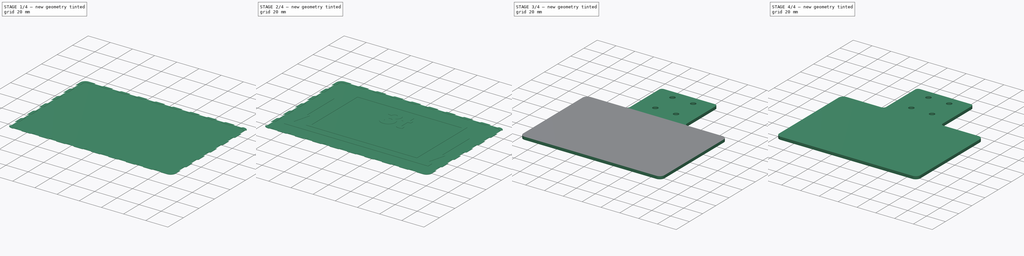
[diagram: build sequence overview — one tinted view per stage of 4, left to right]
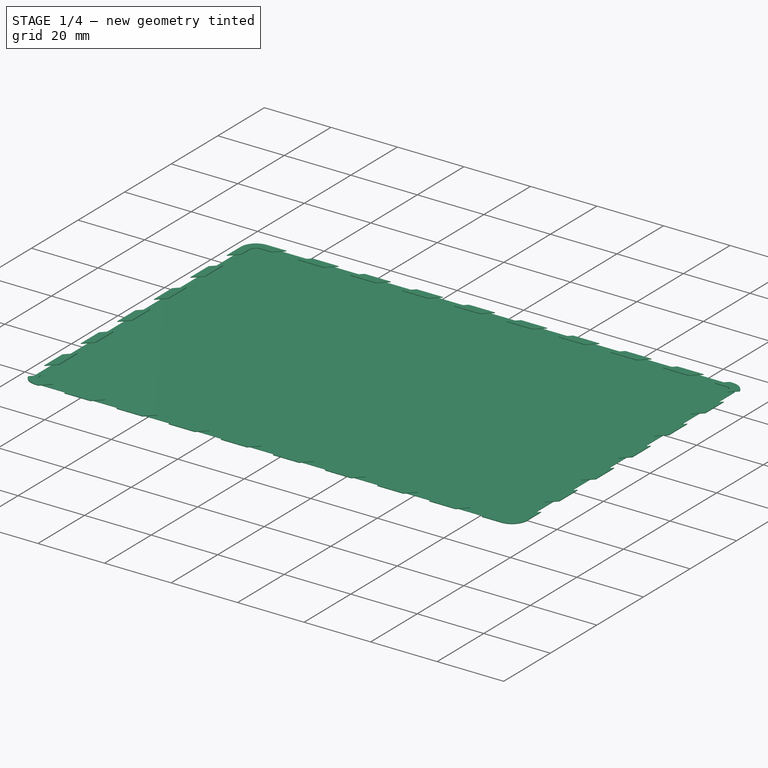
[diagram: stage 1 of 4 — iso view after this stage's code; geometry added in this stage tinted green]
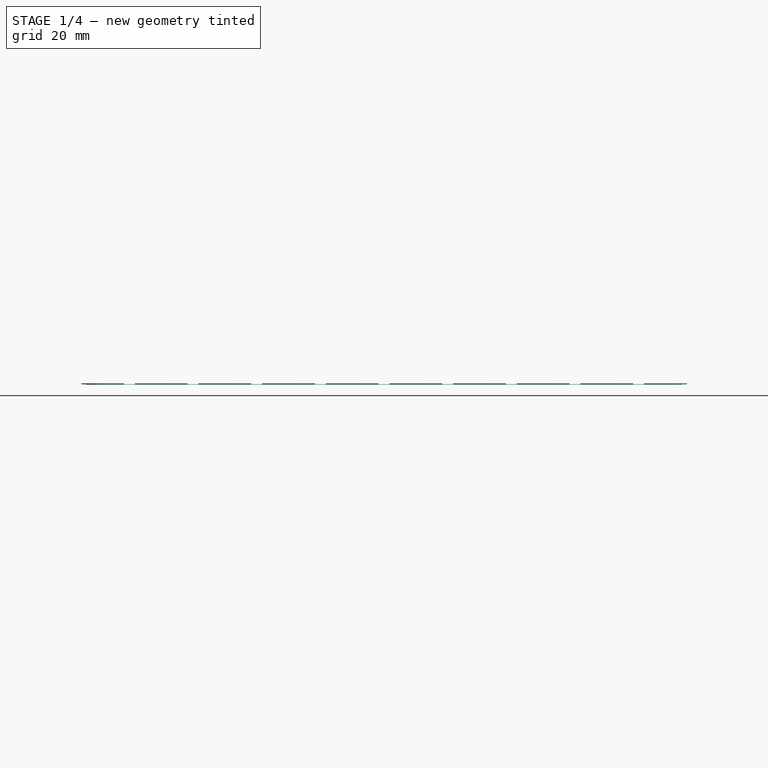
[diagram: stage 1 of 4 — front view after this stage's code; geometry added in this stage tinted green]
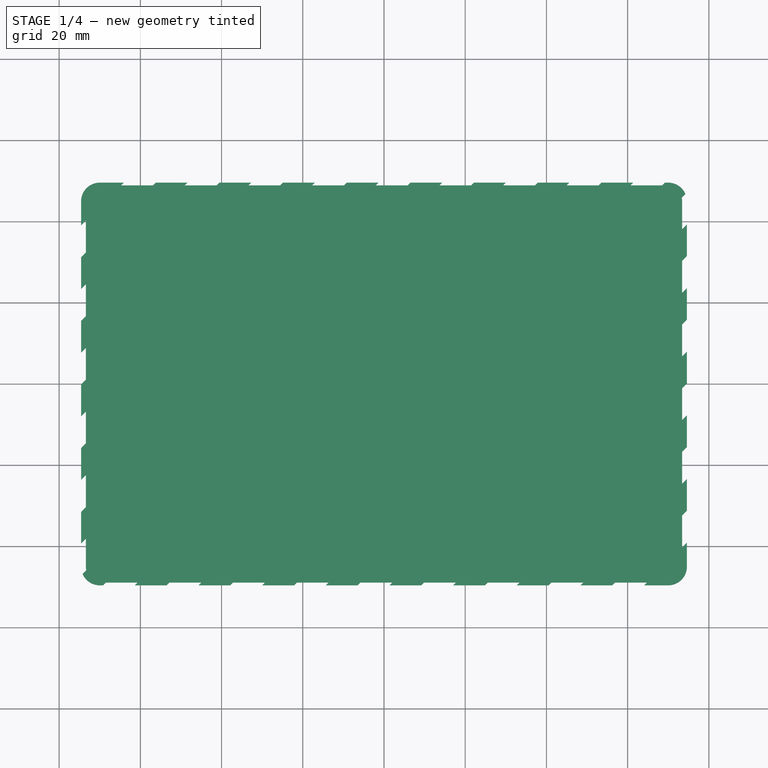
[diagram: stage 1 of 4 — top view after this stage's code; geometry added in this stage tinted green]
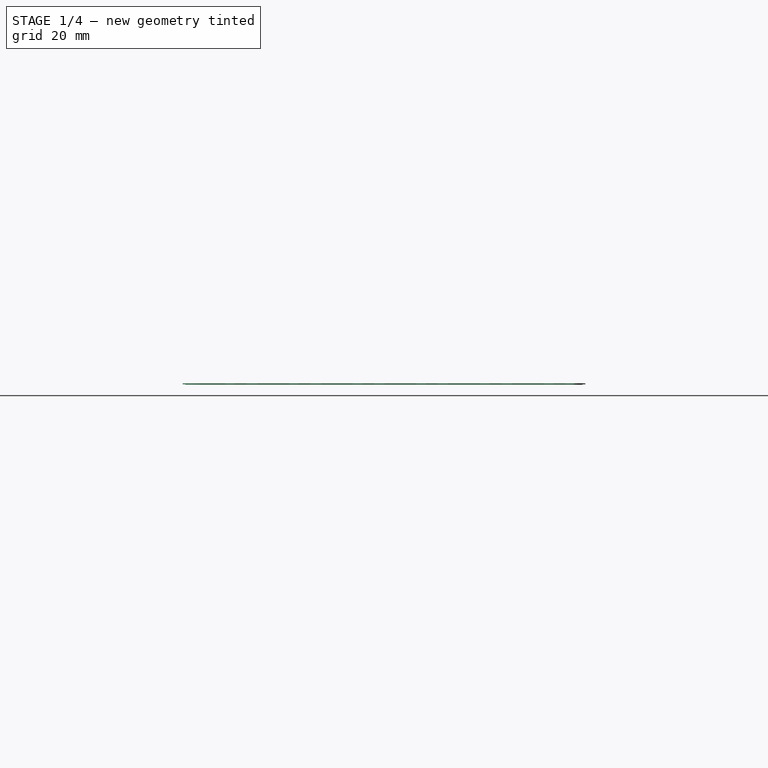
[diagram: stage 1 of 4 — right view after this stage's code; geometry added in this stage tinted green]
FCSTD DOCUMENT  (FreeCAD 1.0R39285 (Git))
Label: 3t_schild_v3
License: All rights reserved
LicenseURL: http://en.wikipedia.org/wiki/All_rights_reserved
objects: PartDesign::Pad×8, Sketcher::SketchObject×7, Part::Part2DObjectPython×4, PartDesign::Body×4, PartDesign::Pocket×3
note: 55 computed .brp shape members not serialized (recipe doc carries the construction recipe); baked Part::Feature solids carry a one-line shape summary decoded from their .brp

FEATURE [Sketcher::SketchObject] Sketch
  ArcFitTolerance = 1e-06
  AttachmentSupport = -> [XY_Plane]
  FullyConstrained = true
  MakeInternals = false
  MapMode = 5
  sketch-geometry (26):
    g0: LineSegment StartX=-75 StartY=45 StartZ=0 EndX=-75 EndY=-45 EndZ=0
    g1: LineSegment StartX=-70 StartY=-50 StartZ=0 EndX=70 EndY=-50 EndZ=0
    g2: LineSegment StartX=75 StartY=-45 StartZ=0 EndX=75 EndY=45 EndZ=0
    g3: LineSegment StartX=70 StartY=50 StartZ=0 EndX=33 EndY=50 EndZ=0
    g4: ArcOfCircle CenterX=-70 CenterY=-45 CenterZ=0 NormalX=0 NormalY=0 NormalZ=1 AngleXU=0 Radius=5 StartAngle=3.14159 EndAngle=4.71239
    g5: GeomPoint [constr] X=-75 Y=-50 Z=0
    g6: ArcOfCircle CenterX=-70 CenterY=45 CenterZ=0 NormalX=0 NormalY=0 NormalZ=1 AngleXU=0 Radius=5 StartAngle=1.5708 EndAngle=3.14159
    g7: GeomPoint [constr] X=-75 Y=50 Z=0
    g8: ArcOfCircle CenterX=70 CenterY=45 CenterZ=0 NormalX=0 NormalY=0 NormalZ=1 AngleXU=0 Radius=5 StartAngle=0 EndAngle=1.5708
    g9: GeomPoint [constr] X=75 Y=50 Z=0
    g10: ArcOfCircle CenterX=70 CenterY=-45 CenterZ=0 NormalX=0 NormalY=0 NormalZ=1 AngleXU=0 Radius=5 StartAngle=4.71239 EndAngle=6.28319
    g11: GeomPoint [constr] X=75 Y=-50 Z=0
    g12: LineSegment StartX=-30 StartY=97 StartZ=0 EndX=-30 EndY=53 EndZ=0
    g13: LineSegment StartX=30 StartY=53 StartZ=0 EndX=30 EndY=97 EndZ=0
    g14: LineSegment StartX=27 StartY=100 StartZ=0 EndX=-27 EndY=100 EndZ=0
    g15: ArcOfCircle CenterX=-27 CenterY=97 CenterZ=0 NormalX=0 NormalY=0 NormalZ=1 AngleXU=0 Radius=3 StartAngle=1.5708 EndAngle=3.14159
    g16: GeomPoint [constr] X=-30 Y=100 Z=0
    g17: ArcOfCircle CenterX=27 CenterY=97 CenterZ=0 NormalX=0 NormalY=0 NormalZ=1 AngleXU=0 Radius=3 StartAngle=1e-16 EndAngle=1.5708
    g18: GeomPoint [constr] X=30 Y=100 Z=0
    g19: LineSegment StartX=-33 StartY=50 StartZ=0 EndX=-70 EndY=50 EndZ=0
    g20: ArcOfCircle CenterX=33 CenterY=53 CenterZ=0 NormalX=0 NormalY=0 NormalZ=1 AngleXU=0 Radius=3 StartAngle=3.14159 EndAngle=4.71239
    g21: ArcOfCircle CenterX=-33 CenterY=53 CenterZ=0 NormalX=0 NormalY=0 NormalZ=1 AngleXU=0 Radius=3 StartAngle=4.71239 EndAngle=6.28319
    g22: Circle CenterX=-11 CenterY=90 CenterZ=0 NormalX=0 NormalY=0 NormalZ=1 AngleXU=0 Radius=2.75
    g23: Circle CenterX=11 CenterY=90 CenterZ=0 NormalX=0 NormalY=0 NormalZ=1 AngleXU=0 Radius=2.75
    g24: Circle CenterX=-11 CenterY=64 CenterZ=0 NormalX=0 NormalY=0 NormalZ=1 AngleXU=0 Radius=2.75
    g25: Circle CenterX=11 CenterY=64 CenterZ=0 NormalX=0 NormalY=0 NormalZ=1 AngleXU=0 Radius=2.75
  constraints (61):
    c: Vertical(g0)
    c: Vertical(g2)
    c: Horizontal(g1)
    c: Horizontal(g3)
    c: Symmetric(g7,g11,g-1)
    c: DistanceY(g11,g9) = 100
    c: DistanceX(g7,g9) = 150
    c: PointOnObject(g5,g0)
    c: PointOnObject(g5,g1)
    c: Tangent(g0,g4) = -1.5708
    c: Tangent(g1,g4) = -1.5708
    c: PointOnObject(g7,g0)
    c: PointOnObject(g7,g19)
    c: Tangent(g0,g6) = -1.5708
    c: PointOnObject(g9,g2)
    c: PointOnObject(g9,g3)
    c: Tangent(g2,g8) = -1.5708
    c: Tangent(g3,g8) = -1.5708
    c: PointOnObject(g11,g1)
    c: PointOnObject(g11,g2)
    c: Tangent(g1,g10) = -1.5708
    c: Tangent(g2,g10) = -1.5708
    c: Equal(g6,g8)
    c: Equal(g8,g10)
    c: Equal(g10,g4)
    c: Radius(g8) = 5
    c: Vertical(g12)
    c: Vertical(g13)
    c: Symmetric(g18,g16,g-2)
    c: DistanceX(g16,g18) = 60
    c: PointOnObject(g16,g12)
    c: PointOnObject(g16,g14)
    c: Tangent(g12,g15) = -1.5708
    c: Tangent(g14,g15) = -1.5708
    c: PointOnObject(g18,g13)
    c: PointOnObject(g18,g14)
    c: Tangent(g13,g17) = -1.5708
    c: Tangent(g14,g17) = -1.5708
    c: Radius(g17) = 3
    c: Equal(g15,g17)
    c: Horizontal(g19)
    c: Tangent(g20,g13) = 1.5708
    c: Tangent(g20,g3) = 1.5708
    c: Equal(g20,g17)
    c: Tangent(g21,g12) = 1.5708
    c: Tangent(g21,g19) = 1.5708
    c: Equal(g21,g17)
    c: Horizontal(g3,g19)
    c: DistanceY(g3,g14) = 50
    c: Tangent(g19,g6) = -1.5708
    c: Equal(g23,g25)
    c: Equal(g25,g24)
    c: Equal(g24,g22)
    c: Diameter(g23) = 5.5
    c: Vertical(g22,g24)
    c: Horizontal(g22,g23)
    c: Vertical(g25,g23)
    c: Symmetric(g25,g24,g-2)
    c: DistanceY(g24,g22) = 26
    c: DistanceX(g24,g25) = 22
    c: Distance(g22,g14) = 10
FEATURE [Part::Part2DObjectPython] ShapeString001  label="3t_b"  # Draft 2D object (typed FeaturePython)
  FontFile = <path>
  Fuse = false
  Justification = 6
  JustificationReference = 0
  KeepLeftMargin = false
  MakeFace = true
  ObliqueAngle = 0
  Placement = pos=(-11.7133,6.6667,-0.2) rot=(0,0,1;0rad)
  ScaleToSize = true
  Size = 20
  String = 3t
  Tracking = 0
FEATURE [Part::Part2DObjectPython] ShapeString002  # Draft 2D object (typed FeaturePython)
  FontFile = <path>
  Fuse = false
  Justification = 6
  JustificationReference = 0
  KeepLeftMargin = false
  MakeFace = true
  ObliqueAngle = 0
  Placement = pos=(-26.9468,-19.6666,0) rot=(0,0,1;0rad)
  ScaleToSize = true
  Size = 20
  String = max
  Tracking = 0
FEATURE [Part::Part2DObjectPython] ShapeString003  # Draft 2D object (typed FeaturePython)
  FontFile = <path>
  Fuse = false
  Justification = 6
  JustificationReference = 0
  KeepLeftMargin = false
  MakeFace = true
  ObliqueAngle = 0
  Placement = pos=(-11.7133,6.6667,0) rot=(0,0,1;0rad)
  ScaleToSize = true
  Size = 20
  String = 3t
  Tracking = 0
FEATURE [Sketcher::SketchObject] Sketch003
  ArcFitTolerance = 1e-06
  AttachmentOffset = pos=(0,0,-0.2) rot=(0,0,1;0rad)
  AttachmentSupport = -> [XY_Plane002]
  FullyConstrained = false
  MakeInternals = false
  MapMode = 5
  Placement = pos=(0,0,-0.2) rot=(0,0,1;0rad)
  sketch-geometry (36):
    g0: LineSegment [constr] StartX=60.9 StartY=-32.9 StartZ=0 EndX=61 EndY=-32.9 EndZ=0
    g1: LineSegment [constr] StartX=60.9 StartY=-32.9 StartZ=0 EndX=60.9 EndY=-33 EndZ=0
    g2: LineSegment [constr] StartX=-60.9 StartY=-27.1 StartZ=0 EndX=-60.9 EndY=-27 EndZ=0
    g3: LineSegment [constr] StartX=-60.9 StartY=-27.1 StartZ=0 EndX=-61 EndY=-27.1 EndZ=0
    g4: LineSegment StartX=-50 StartY=36 StartZ=0 EndX=-50 EndY=-29 EndZ=0
    g5: LineSegment StartX=50 StartY=-29 StartZ=0 EndX=50 EndY=36 EndZ=0
    g6: LineSegment StartX=50 StartY=36 StartZ=0 EndX=-50 EndY=36 EndZ=0
    g7: LineSegment StartX=65 StartY=-31 StartZ=0 EndX=-65 EndY=-31 EndZ=0
    g8: LineSegment StartX=-65 StartY=-31 StartZ=0 EndX=-65 EndY=-36 EndZ=0
    g9: LineSegment StartX=-65 StartY=-36 StartZ=0 EndX=65 EndY=-36 EndZ=0
    g10: LineSegment StartX=65 StartY=-36 StartZ=0 EndX=65 EndY=-31 EndZ=0
    g11: LineSegment StartX=-47 StartY=33 StartZ=0 EndX=-47 EndY=-26 EndZ=0
    g12: LineSegment StartX=47 StartY=-26 StartZ=0 EndX=47 EndY=33 EndZ=0
    g13: LineSegment StartX=47 StartY=33 StartZ=0 EndX=-47 EndY=33 EndZ=0
    g14: LineSegment [constr] StartX=47 StartY=33 StartZ=0 EndX=47 EndY=36 EndZ=0
    g15: LineSegment StartX=-47 StartY=-26 StartZ=0 EndX=47 EndY=-26 EndZ=0
    g16: LineSegment StartX=50 StartY=-29 StartZ=0 EndX=-50 EndY=-29 EndZ=0
    g17: LineSegment [constr] StartX=-47 StartY=-26 StartZ=0 EndX=-50 EndY=-26 EndZ=0
    g18: LineSegment [constr] StartX=47 StartY=33 StartZ=0 EndX=50 EndY=33 EndZ=0
    g19: LineSegment [constr] StartX=-47 StartY=-26 StartZ=0 EndX=-47 EndY=-29 EndZ=0
    g20: LineSegment StartX=-62.5 StartY=20.9282 StartZ=0 EndX=-62.5 EndY=-14.0718 EndZ=0
    g21: LineSegment StartX=-62.5 StartY=-14.0718 StartZ=0 EndX=-65 EndY=-14.0718 EndZ=0
    g22: LineSegment StartX=-65 StartY=-14.0718 StartZ=0 EndX=-61 EndY=-29 EndZ=0
    g23: LineSegment StartX=-61 StartY=-29 StartZ=0 EndX=-57 EndY=-14.0718 EndZ=0
    g24: LineSegment StartX=-57 StartY=-14.0718 StartZ=0 EndX=-59.5 EndY=-14.0718 EndZ=0
    g25: LineSegment StartX=-59.5 StartY=-14.0718 StartZ=0 EndX=-59.5 EndY=20.9282 EndZ=0
    g26: LineSegment StartX=-59.5 StartY=20.9282 StartZ=0 EndX=-62.5 EndY=20.9282 EndZ=0
    g27: LineSegment StartX=62.5 StartY=20.9282 StartZ=0 EndX=62.5 EndY=-14.0718 EndZ=0
    g28: LineSegment StartX=62.5 StartY=-14.0718 StartZ=0 EndX=65 EndY=-14.0718 EndZ=0
    g29: LineSegment StartX=65 StartY=-14.0718 StartZ=0 EndX=61 EndY=-29 EndZ=0
    g30: LineSegment StartX=61 StartY=-29 StartZ=0 EndX=57 EndY=-14.0718 EndZ=0
    g31: LineSegment StartX=57 StartY=-14.0718 StartZ=0 EndX=59.5 EndY=-14.0718 EndZ=0
    g32: LineSegment StartX=59.5 StartY=-14.0718 StartZ=0 EndX=59.5 EndY=20.9282 EndZ=0
    g33: LineSegment StartX=59.5 StartY=20.9282 StartZ=0 EndX=62.5 EndY=20.9282 EndZ=0
    g34: LineSegment [constr] StartX=0 StartY=0 StartZ=0 EndX=0 EndY=36 EndZ=0
    g35: LineSegment [constr] StartX=0 StartY=0 StartZ=0 EndX=0 EndY=-36 EndZ=0
  constraints (100):
    c: Horizontal(g0)
    c: Vertical(g1)
    c: Vertical(g2)
    c: Horizontal(g3)
    c: Equal(g2,g3)
    c: Equal(g3,g0)
    c: Equal(g0,g1)
    c: DistanceX(g0,g0) = 0.1
    c: Coincident(g5,g6)
    c: Coincident(g6,g4)
    c: Vertical(g4)
    c: Vertical(g5)
    c: Horizontal(g7)
    c: Coincident(g7,g8)
    c: Coincident(g8,g9)
    c: Coincident(g9,g10)
    c: Vertical(g10)
    c: Vertical(g8)
    c: Symmetric(g4,g5,g-2)
    c: DistanceX(g9,g9) = 130
    c: DistanceY(g10,g10) = 5
    c: DistanceX(g6,g6) = 100
    c: DistanceY(g5,g5) = 65
    c: Coincident(g12,g13)
    c: Coincident(g13,g11)
    c: Vertical(g11)
    c: Vertical(g12)
    c: Horizontal(g13)
    c: Coincident(g12,g14)
    c: PointOnObject(g14,g6)
    c: Vertical(g14)
    c: DistanceY(g14,g14) = 3
    c: Coincident(g7,g10)
    c: Coincident(g11,g15)
    c: Coincident(g15,g12)
    c: Horizontal(g15)
    c: Coincident(g5,g16)
    c: Coincident(g16,g4)
    c: Horizontal(g16)
    c: Distance(g5,g7) = 2
    c: Coincident(g11,g17)
    c: PointOnObject(g17,g4)
    c: Horizontal(g17)
    c: Coincident(g12,g18)
    c: PointOnObject(g18,g5)
    c: Horizontal(g18)
    c: Coincident(g11,g19)
    c: PointOnObject(g19,g16)
    c: Vertical(g19)
    c: Equal(g19,g17)
    c: Equal(g17,g18)
    c: Equal(g18,g14)
    c: Symmetric(g9,g8,g-2)
    c: Vertical(g20)
    c: Coincident(g20,g21)
    c: Horizontal(g21)
    c: Coincident(g21,g22)
    c: Coincident(g22,g23)
    c: Coincident(g23,g24)
    c: Horizontal(g24)
    c: Coincident(g24,g25)
    c: Vertical(g25)
    c: Coincident(g25,g26)
    c: Horizontal(g26)
    c: Coincident(g20,g26)
    c: Equal(g24,g21)
    c: Horizontal(g20,g24)
    c: Equal(g22,g23)
    c: Equal(g26,g14)
    c: Horizontal(g4,g22)
    c: DistanceX(g21,g23) = 8
    c: Angle(g23,g22) = 0.523599
    c: Vertical(g27)
    c: Coincident(g27,g28)
    c: Horizontal(g28)
    c: Coincident(g28,g29)
    c: Coincident(g29,g30)
    c: Coincident(g30,g31)
    c: Horizontal(g31)
    c: Coincident(g31,g32)
    c: Vertical(g32)
    c: Coincident(g32,g33)
    c: Horizontal(g33)
    c: Coincident(g27,g33)
    c: Equal(g31,g28)
    c: Equal(g29,g30)
    c: Angle(g30,g29) = -0.523599
    c: Horizontal(g27,g31)
    c: Equal(g33,g14)
    c: DistanceY(g32,g32) = 35
    c: DistanceX(g30,g28) = 8
    c: Symmetric(g29,g22,g-2)
    c: Vertical(g28,g7)
    c: DistanceY(g12,g12) = 59
    c: Horizontal(g25,g32)
    c: Coincident(g-1,g34)
    c: Symmetric(g6,g6,g34)
    c: Coincident(g34,g35)
    c: Symmetric(g9,g9,g35)
    c: Equal(g35,g34)
FEATURE [Sketcher::SketchObject] Sketch006
  ArcFitTolerance = 1e-06
  AttachmentSupport = -> [XY_Plane003]
  FullyConstrained = false
  MakeInternals = false
  MapMode = 5
  sketch-geometry (234):
    g0: LineSegment StartX=70 StartY=-49.6 StartZ=0 EndX=64.0663 EndY=-49.6 EndZ=0
    g1: LineSegment StartX=-74.6 StartY=-39.3242 StartZ=0 EndX=-74.6 EndY=-31.4852 EndZ=0
    g2: ArcOfCircle CenterX=-70 CenterY=45 CenterZ=0 NormalX=0 NormalY=0 NormalZ=1 AngleXU=0 Radius=4.6 StartAngle=1.5708 EndAngle=3.14159
    g3: LineSegment StartX=-70 StartY=49.6 StartZ=0 EndX=-64.0663 EndY=49.6 EndZ=0
    g4: ArcOfCircle CenterX=70 CenterY=45 CenterZ=0 NormalX=0 NormalY=0 NormalZ=1 AngleXU=0 Radius=4.6 StartAngle=0.401469 EndAngle=1.5708
    g5: ArcOfCircle CenterX=70 CenterY=-45 CenterZ=0 NormalX=0 NormalY=0 NormalZ=1 AngleXU=0 Radius=4.6 StartAngle=4.71239 EndAngle=6.28319
    g6: LineSegment StartX=70 StartY=-47 StartZ=0 EndX=66.6663 EndY=-47 EndZ=0
    g7: ArcOfCircle CenterX=-70 CenterY=-45 CenterZ=0 NormalX=0 NormalY=0 NormalZ=1 AngleXU=0 Radius=2 StartAngle=3.14159 EndAngle=4.71239
    g8: LineSegment StartX=-72 StartY=-36.7242 StartZ=0 EndX=-72 EndY=-28.8852 EndZ=0
    g9: ArcOfCircle CenterX=-70 CenterY=45 CenterZ=0 NormalX=0 NormalY=0 NormalZ=1 AngleXU=0 Radius=2 StartAngle=1.5708 EndAngle=3.14159
    g10: LineSegment StartX=-70 StartY=47 StartZ=0 EndX=-66.6663 EndY=47 EndZ=0
    g11: ArcOfCircle CenterX=70 CenterY=45 CenterZ=0 NormalX=0 NormalY=0 NormalZ=1 AngleXU=0 Radius=2 StartAngle=-9e-16 EndAngle=1.5708
    g12: LineSegment StartX=72 StartY=45 StartZ=0 EndX=72 EndY=44.5633 EndZ=0
    g13: ArcOfCircle CenterX=70 CenterY=-45 CenterZ=0 NormalX=0 NormalY=0 NormalZ=1 AngleXU=0 Radius=2 StartAngle=4.71239 EndAngle=6.28319
    g14: LineSegment [constr] StartX=126.693 StartY=13.0271 StartZ=0 EndX=122.774 EndY=16.9467 EndZ=0
    g15: LineSegment [constr] StartX=122.774 StartY=16.9467 StartZ=0 EndX=118.854 EndY=20.8662 EndZ=0
    g16: LineSegment [constr] StartX=118.854 StartY=20.8662 StartZ=0 EndX=114.935 EndY=24.7857 EndZ=0
    g17: LineSegment [constr] StartX=114.935 StartY=24.7857 StartZ=0 EndX=111.015 EndY=28.7052 EndZ=0
    g18: LineSegment [constr] StartX=111.015 StartY=28.7052 StartZ=0 EndX=107.096 EndY=32.6248 EndZ=0
    g19: LineSegment [constr] StartX=107.096 StartY=32.6248 StartZ=0 EndX=103.176 EndY=36.5443 EndZ=0
    g20: LineSegment [constr] StartX=103.176 StartY=36.5443 StartZ=0 EndX=99.2568 EndY=40.4638 EndZ=0
    g21: LineSegment [constr] StartX=99.2568 StartY=40.4638 StartZ=0 EndX=95.3372 EndY=44.3834 EndZ=0
    g22: LineSegment [constr] StartX=95.3372 StartY=44.3834 StartZ=0 EndX=91.4177 EndY=48.3029 EndZ=0
    g23: LineSegment [constr] StartX=91.4177 StartY=48.3029 StartZ=0 EndX=87.4982 EndY=52.2224 EndZ=0
    g24: LineSegment [constr] StartX=87.4982 StartY=52.2224 StartZ=0 EndX=83.5786 EndY=56.1419 EndZ=0
    g25: LineSegment [constr] StartX=83.5786 StartY=56.1419 StartZ=0 EndX=79.6591 EndY=60.0615 EndZ=0
    g26: LineSegment [constr] StartX=79.6591 StartY=60.0615 StartZ=0 EndX=75.7396 EndY=63.981 EndZ=0
    g27: LineSegment [constr] StartX=75.7396 StartY=63.981 StartZ=0 EndX=71.8201 EndY=67.9005 EndZ=0
    g28: LineSegment [constr] StartX=71.8201 StartY=67.9005 StartZ=0 EndX=67.9005 EndY=71.8201 EndZ=0
    g29: LineSegment [constr] StartX=67.9005 StartY=71.8201 StartZ=0 EndX=63.981 EndY=75.7396 EndZ=0
    g30: LineSegment [constr] StartX=63.981 StartY=75.7396 StartZ=0 EndX=60.0615 EndY=79.6591 EndZ=0
    g31: LineSegment [constr] StartX=60.0615 StartY=79.6591 StartZ=0 EndX=56.1419 EndY=83.5786 EndZ=0
    g32: LineSegment [constr] StartX=56.1419 StartY=83.5786 StartZ=0 EndX=52.2224 EndY=87.4982 EndZ=0
    g33: LineSegment [constr] StartX=52.2224 StartY=87.4982 StartZ=0 EndX=48.3029 EndY=91.4177 EndZ=0
    g34: LineSegment [constr] StartX=48.3029 StartY=91.4177 StartZ=0 EndX=44.3834 EndY=95.3372 EndZ=0
    g35: LineSegment [constr] StartX=44.3834 StartY=95.3372 StartZ=0 EndX=40.4638 EndY=99.2568 EndZ=0
    g36: LineSegment [constr] StartX=40.4638 StartY=99.2568 StartZ=0 EndX=36.5443 EndY=103.176 EndZ=0
    g37: LineSegment [constr] StartX=36.5443 StartY=103.176 StartZ=0 EndX=32.6248 EndY=107.096 EndZ=0
    g38: LineSegment [constr] StartX=32.6248 StartY=107.096 StartZ=0 EndX=28.7052 EndY=111.015 EndZ=0
    g39: LineSegment [constr] StartX=28.7052 StartY=111.015 StartZ=0 EndX=24.7857 EndY=114.935 EndZ=0
    g40: LineSegment [constr] StartX=24.7857 StartY=114.935 StartZ=0 EndX=20.8662 EndY=118.854 EndZ=0
    g41: LineSegment [constr] StartX=20.8662 StartY=118.854 StartZ=0 EndX=24.7857 EndY=114.935 EndZ=0
    g42: LineSegment [constr] StartX=24.7857 StartY=114.935 StartZ=0 EndX=20.8662 EndY=118.854 EndZ=0
    g43: LineSegment [constr] StartX=20.8662 StartY=118.854 StartZ=0 EndX=16.9467 EndY=122.774 EndZ=0
    g44: LineSegment [constr] StartX=16.9467 StartY=122.774 StartZ=0 EndX=20.8662 EndY=118.854 EndZ=0
    g45: LineSegment [constr] StartX=20.8662 StartY=118.854 StartZ=0 EndX=16.9467 EndY=122.774 EndZ=0
    g46: LineSegment [constr] StartX=16.9467 StartY=122.774 StartZ=0 EndX=13.0271 EndY=126.693 EndZ=0
    g47: LineSegment [constr] StartX=13.0271 StartY=126.693 StartZ=0 EndX=9.1076 EndY=130.613 EndZ=0
    g48: LineSegment [constr] StartX=9.1076 StartY=130.613 StartZ=0 EndX=-73.2527 EndY=48.2527 EndZ=0
    g49: LineSegment StartX=-74.6 StartY=39.0663 StartZ=0 EndX=-72 EndY=41.6663 EndZ=0
    g50: LineSegment StartX=-66.6663 StartY=47 StartZ=0 EndX=-64.0663 EndY=49.6 EndZ=0
    g51: LineSegment [constr] StartX=130.613 StartY=9.1076 StartZ=0 EndX=73.2527 EndY=-48.2527 EndZ=0
    g52: LineSegment StartX=-74.6 StartY=31.2273 StartZ=0 EndX=-72 EndY=33.8273 EndZ=0
    g53: LineSegment StartX=-58.8273 StartY=47 StartZ=0 EndX=-56.2273 EndY=49.6 EndZ=0
    g54: LineSegment StartX=-56.2273 StartY=49.6 StartZ=0 EndX=-48.3882 EndY=49.6 EndZ=0
    g55: LineSegment StartX=-58.8273 StartY=47 StartZ=0 EndX=-50.9882 EndY=47 EndZ=0
    g56: LineSegment StartX=-72 StartY=41.6663 StartZ=0 EndX=-72 EndY=45 EndZ=0
    g57: LineSegment StartX=-74.6 StartY=39.0663 StartZ=0 EndX=-74.6 EndY=45 EndZ=0
    g58: LineSegment StartX=-74.6 StartY=23.3882 StartZ=0 EndX=-72 EndY=25.9882 EndZ=0
    g59: LineSegment StartX=-50.9882 StartY=47 StartZ=0 EndX=-48.3882 EndY=49.6 EndZ=0
    g60: LineSegment StartX=-40.5492 StartY=49.6 StartZ=0 EndX=-43.1492 EndY=47 EndZ=0
    g61: LineSegment StartX=-72 StartY=18.1492 StartZ=0 EndX=-74.6 EndY=15.5492 EndZ=0
    g62: LineSegment [constr] StartX=-64.0663 StartY=49.6 StartZ=0 EndX=-56.2273 EndY=49.6 EndZ=0
    g63: LineSegment [constr] StartX=-66.6663 StartY=47 StartZ=0 EndX=-58.8273 EndY=47 EndZ=0
    g64: LineSegment [constr] StartX=-72 StartY=41.6663 StartZ=0 EndX=-72 EndY=33.8273 EndZ=0
    g65: LineSegment [constr] StartX=-74.6 StartY=39.0663 StartZ=0 EndX=-74.6 EndY=31.2273 EndZ=0
    g66: LineSegment StartX=-40.5492 StartY=49.6 StartZ=0 EndX=-32.7101 EndY=49.6 EndZ=0
    g67: LineSegment StartX=-43.1492 StartY=47 StartZ=0 EndX=-35.3101 EndY=47 EndZ=0
    g68: LineSegment StartX=-72 StartY=25.9882 StartZ=0 EndX=-72 EndY=33.8273 EndZ=0
    g69: LineSegment StartX=-74.6 StartY=23.3882 StartZ=0 EndX=-74.6 EndY=31.2273 EndZ=0
    g70: LineSegment [constr] StartX=-48.3882 StartY=49.6 StartZ=0 EndX=-40.5492 EndY=49.6 EndZ=0
    g71: LineSegment [constr] StartX=-50.9882 StartY=47 StartZ=0 EndX=-43.1492 EndY=47 EndZ=0
    g72: LineSegment [constr] StartX=-72 StartY=25.9882 StartZ=0 EndX=-72 EndY=18.1492 EndZ=0
    g73: LineSegment [constr] StartX=-74.6 StartY=23.3882 StartZ=0 EndX=-74.6 EndY=15.5492 EndZ=0
    g74: LineSegment StartX=-74.6 StartY=7.7101 StartZ=0 EndX=-72 EndY=10.3101 EndZ=0
    g75: LineSegment StartX=-72 StartY=2.47104 StartZ=0 EndX=-74.6 EndY=-0.128959 EndZ=0
    g76: LineSegment StartX=-32.7101 StartY=49.6 StartZ=0 EndX=-35.3101 EndY=47 EndZ=0
    g77: LineSegment StartX=-27.471 StartY=47 StartZ=0 EndX=-24.871 EndY=49.6 EndZ=0
    g78: LineSegment StartX=-24.871 StartY=49.6 StartZ=0 EndX=-17.032 EndY=49.6 EndZ=0
    g79: LineSegment StartX=-27.471 StartY=47 StartZ=0 EndX=-19.632 EndY=47 EndZ=0
    g80: LineSegment StartX=-72 StartY=10.3101 StartZ=0 EndX=-72 EndY=18.1492 EndZ=0
    g81: LineSegment StartX=-74.6 StartY=7.7101 StartZ=0 EndX=-74.6 EndY=15.5492 EndZ=0
    g82: LineSegment [constr] StartX=-72 StartY=10.3101 StartZ=0 EndX=-72 EndY=2.47104 EndZ=0
    g83: LineSegment [constr] StartX=-74.6 StartY=7.7101 StartZ=0 EndX=-74.6 EndY=-0.128959 EndZ=0
    g84: LineSegment [constr] StartX=-32.7101 StartY=49.6 StartZ=0 EndX=-24.871 EndY=49.6 EndZ=0
    g85: LineSegment [constr] StartX=-27.471 StartY=47 StartZ=0 EndX=-35.3101 EndY=47 EndZ=0
    g86: LineSegment StartX=-74.6 StartY=-7.96802 StartZ=0 EndX=-72 EndY=-5.36802 EndZ=0
    g87: LineSegment StartX=-72 StartY=-13.2071 StartZ=0 EndX=-74.6 EndY=-15.8071 EndZ=0
    g88: LineSegment StartX=-19.632 StartY=47 StartZ=0 EndX=-17.032 EndY=49.6 EndZ=0
    g89: LineSegment StartX=-11.7929 StartY=47 StartZ=0 EndX=-9.19293 EndY=49.6 EndZ=0
    g90: LineSegment StartX=-9.19293 StartY=49.6 StartZ=0 EndX=-1.35387 EndY=49.6 EndZ=0
    g91: LineSegment StartX=-11.7929 StartY=47 StartZ=0 EndX=-3.95387 EndY=47 EndZ=0
    g92: LineSegment StartX=-72 StartY=-5.36802 StartZ=0 EndX=-72 EndY=2.47104 EndZ=0
    g93: LineSegment StartX=-74.6 StartY=-7.96802 StartZ=0 EndX=-74.6 EndY=-0.128959 EndZ=0
    g94: LineSegment [constr] StartX=-72 StartY=-5.36802 StartZ=0 EndX=-72 EndY=-13.2071 EndZ=0
    g95: LineSegment [constr] StartX=-74.6 StartY=-7.96802 StartZ=0 EndX=-74.6 EndY=-15.8071 EndZ=0
    g96: LineSegment [constr] StartX=-17.032 StartY=49.6 StartZ=0 EndX=-9.19293 EndY=49.6 EndZ=0
    g97: LineSegment [constr] StartX=-19.632 StartY=47 StartZ=0 EndX=-11.7929 EndY=47 EndZ=0
    g98: LineSegment StartX=-3.95387 StartY=47 StartZ=0 EndX=-1.35387 EndY=49.6 EndZ=0
    g99: LineSegment StartX=6.48519 StartY=49.6 StartZ=0 EndX=3.88519 EndY=47 EndZ=0
    g100: LineSegment StartX=-74.6 StartY=-23.6461 StartZ=0 EndX=-72 EndY=-21.0461 EndZ=0
    g101: LineSegment StartX=-72 StartY=-28.8852 StartZ=0 EndX=-74.6 EndY=-31.4852 EndZ=0
    g102: LineSegment StartX=3.88519 StartY=47 StartZ=0 EndX=11.7242 EndY=47 EndZ=0
    g103: LineSegment StartX=-72 StartY=-21.0461 StartZ=0 EndX=-72 EndY=-13.2071 EndZ=0
    g104: LineSegment StartX=-74.6 StartY=-23.6461 StartZ=0 EndX=-74.6 EndY=-15.8071 EndZ=0
    g105: LineSegment [constr] StartX=-1.35387 StartY=49.6 StartZ=0 EndX=6.48519 EndY=49.6 EndZ=0
    g106: LineSegment [constr] StartX=-3.95387 StartY=47 StartZ=0 EndX=3.88519 EndY=47 EndZ=0
    g107: LineSegment [constr] StartX=-72 StartY=-21.0461 StartZ=0 EndX=-72 EndY=-28.8852 EndZ=0
    g108: LineSegment [constr] StartX=-74.6 StartY=-23.6461 StartZ=0 EndX=-74.6 EndY=-31.4852 EndZ=0
    g109: LineSegment StartX=-74.6 StartY=-39.3242 StartZ=0 EndX=-72 EndY=-36.7242 EndZ=0
    g110: LineSegment StartX=11.7242 StartY=47 StartZ=0 EndX=14.3242 EndY=49.6 EndZ=0
    g111: LineSegment StartX=22.1633 StartY=49.6 StartZ=0 EndX=19.5633 EndY=47 EndZ=0
    g112: ArcOfCircle CenterX=-70 CenterY=-45 CenterZ=0 NormalX=0 NormalY=0 NormalZ=1 AngleXU=0 Radius=4.6 StartAngle=3.54306 EndAngle=4.71239
    g113: LineSegment StartX=22.1633 StartY=49.6 StartZ=0 EndX=30.0024 EndY=49.6 EndZ=0
    g114: LineSegment StartX=19.5633 StartY=47 StartZ=0 EndX=27.4024 EndY=47 EndZ=0
    g115: LineSegment StartX=6.48519 StartY=49.6 StartZ=0 EndX=14.3242 EndY=49.6 EndZ=0
    g116: LineSegment [constr] StartX=14.3242 StartY=49.6 StartZ=0 EndX=22.1633 EndY=49.6 EndZ=0
    g117: LineSegment [constr] StartX=19.5633 StartY=47 StartZ=0 EndX=11.7242 EndY=47 EndZ=0
    g118: LineSegment [constr] StartX=-72 StartY=-36.7242 StartZ=0 EndX=-72 EndY=-44.5633 EndZ=0
    g119: LineSegment StartX=-69.1976 StartY=-49.6 StartZ=0 EndX=-66.5976 EndY=-47 EndZ=0
    g120: LineSegment StartX=-61.3586 StartY=-49.6 StartZ=0 EndX=-58.7586 EndY=-47 EndZ=0
    g121: LineSegment StartX=-50.9195 StartY=-47 StartZ=0 EndX=-53.5195 EndY=-49.6 EndZ=0
    g122: LineSegment StartX=-45.6805 StartY=-49.6 StartZ=0 EndX=-43.0805 EndY=-47 EndZ=0
    g123: LineSegment StartX=-35.2414 StartY=-47 StartZ=0 EndX=-37.8414 EndY=-49.6 EndZ=0
    g124: LineSegment StartX=-27.4024 StartY=-47 StartZ=0 EndX=-30.0024 EndY=-49.6 EndZ=0
    g125: LineSegment StartX=27.4024 StartY=47 StartZ=0 EndX=30.0024 EndY=49.6 EndZ=0
    g126: LineSegment StartX=37.8414 StartY=49.6 StartZ=0 EndX=35.2414 EndY=47 EndZ=0
    g127: LineSegment StartX=43.0805 StartY=47 StartZ=0 EndX=45.6805 EndY=49.6 EndZ=0
    g128: LineSegment StartX=53.5195 StartY=49.6 StartZ=0 EndX=50.9195 EndY=47 EndZ=0
    g129: LineSegment StartX=74.2342 StartY=46.7975 StartZ=0 EndX=72 EndY=44.5633 EndZ=0
    g130: LineSegment StartX=-66.5976 StartY=-47 StartZ=0 EndX=-70 EndY=-47 EndZ=0
    g131: LineSegment StartX=-69.1976 StartY=-49.6 StartZ=0 EndX=-70 EndY=-49.6 EndZ=0
    g132: LineSegment StartX=-50.9195 StartY=-47 StartZ=0 EndX=-58.7586 EndY=-47 EndZ=0
    g133: LineSegment StartX=-53.5195 StartY=-49.6 StartZ=0 EndX=-61.3586 EndY=-49.6 EndZ=0
    g134: LineSegment StartX=-35.2414 StartY=-47 StartZ=0 EndX=-43.0805 EndY=-47 EndZ=0
    g135: LineSegment StartX=-37.8414 StartY=-49.6 StartZ=0 EndX=-45.6805 EndY=-49.6 EndZ=0
    g136: LineSegment StartX=35.2414 StartY=47 StartZ=0 EndX=43.0805 EndY=47 EndZ=0
    g137: LineSegment StartX=37.8414 StartY=49.6 StartZ=0 EndX=45.6805 EndY=49.6 EndZ=0
    g138: LineSegment StartX=53.5195 StartY=49.6 StartZ=0 EndX=61.3586 EndY=49.6 EndZ=0
    g139: LineSegment StartX=61.3586 StartY=49.6 StartZ=0 EndX=58.7586 EndY=47 EndZ=0
    g140: LineSegment StartX=50.9195 StartY=47 StartZ=0 EndX=58.7586 EndY=47 EndZ=0
    g141: LineSegment [constr] StartX=30.0024 StartY=49.6 StartZ=0 EndX=37.8414 EndY=49.6 EndZ=0
    g142: LineSegment [constr] StartX=27.4024 StartY=47 StartZ=0 EndX=35.2414 EndY=47 EndZ=0
    g143: LineSegment [constr] StartX=45.6805 StartY=49.6 StartZ=0 EndX=53.5195 EndY=49.6 EndZ=0
    g144: LineSegment [constr] StartX=43.0805 StartY=47 StartZ=0 EndX=50.9195 EndY=47 EndZ=0
    g145: LineSegment [constr] StartX=-66.5976 StartY=-47 StartZ=0 EndX=-58.7586 EndY=-47 EndZ=0
    g146: LineSegment [constr] StartX=-69.1976 StartY=-49.6 StartZ=0 EndX=-61.3586 EndY=-49.6 EndZ=0
    g147: LineSegment [constr] StartX=-50.9195 StartY=-47 StartZ=0 EndX=-43.0805 EndY=-47 EndZ=0
    g148: LineSegment [constr] StartX=-53.5195 StartY=-49.6 StartZ=0 EndX=-45.6805 EndY=-49.6 EndZ=0
    g149: LineSegment StartX=72 StartY=36.7242 StartZ=0 EndX=74.6 EndY=39.3242 EndZ=0
    g150: LineSegment StartX=72 StartY=36.7242 StartZ=0 EndX=72 EndY=28.8852 EndZ=0
    g151: LineSegment StartX=74.6 StartY=39.3242 StartZ=0 EndX=74.6 EndY=31.4852 EndZ=0
    g152: LineSegment [constr] StartX=72 StartY=44.5633 StartZ=0 EndX=72 EndY=36.7242 EndZ=0
    g153: LineSegment [constr] StartX=-35.2414 StartY=-47 StartZ=0 EndX=-27.4024 EndY=-47 EndZ=0
    g154: LineSegment [constr] StartX=-37.8414 StartY=-49.6 StartZ=0 EndX=-30.0024 EndY=-49.6 EndZ=0
    g155: ArcOfCircle [constr] CenterX=70 CenterY=45 CenterZ=0 NormalX=0 NormalY=0 NormalZ=1 AngleXU=0 Radius=2 StartAngle=1.5708 EndAngle=2.06578
    g156: LineSegment [constr] StartX=61.3586 StartY=49.6 StartZ=0 EndX=70.004 EndY=49.6 EndZ=0
    g157: LineSegment [constr] StartX=58.7586 StartY=47 StartZ=0 EndX=66.5976 EndY=47 EndZ=0
    g158: ArcOfCircle [constr] CenterX=-70 CenterY=-45 CenterZ=0 NormalX=0 NormalY=0 NormalZ=1 AngleXU=0 Radius=4.6 StartAngle=3.14159 EndAngle=3.54306
    g159: LineSegment [constr] StartX=-74.6 StartY=-39.3242 StartZ=0 EndX=-74.6 EndY=-45 EndZ=0
    g160: LineSegment StartX=-22.1633 StartY=-49.6 StartZ=0 EndX=-19.5633 EndY=-47 EndZ=0
    g161: LineSegment StartX=-14.3242 StartY=-49.6 StartZ=0 EndX=-11.7242 EndY=-47 EndZ=0
    g162: LineSegment StartX=-6.48519 StartY=-49.6 StartZ=0 EndX=-3.88519 EndY=-47 EndZ=0
    g163: LineSegment StartX=1.35387 StartY=-49.6 StartZ=0 EndX=3.95387 EndY=-47 EndZ=0
    g164: LineSegment StartX=72 StartY=28.8852 StartZ=0 EndX=74.6 EndY=31.4852 EndZ=0
    g165: LineSegment StartX=74.6 StartY=23.6461 StartZ=0 EndX=72 EndY=21.0461 EndZ=0
    g166: LineSegment StartX=74.6 StartY=15.8071 StartZ=0 EndX=72 EndY=13.2071 EndZ=0
    g167: LineSegment StartX=72 StartY=5.36802 StartZ=0 EndX=74.6 EndY=7.96802 EndZ=0
    g168: LineSegment StartX=72 StartY=-2.47104 StartZ=0 EndX=74.6 EndY=0.128959 EndZ=0
    g169: LineSegment StartX=74.6 StartY=-7.7101 StartZ=0 EndX=72 EndY=-10.3101 EndZ=0
    g170: LineSegment StartX=9.19293 StartY=-49.6 StartZ=0 EndX=11.7929 EndY=-47 EndZ=0
    g171: LineSegment StartX=48.3882 StartY=-49.6 StartZ=0 EndX=50.9882 EndY=-47 EndZ=0
    g172: LineSegment StartX=40.5492 StartY=-49.6 StartZ=0 EndX=43.1492 EndY=-47 EndZ=0
    g173: LineSegment StartX=17.032 StartY=-49.6 StartZ=0 EndX=19.632 EndY=-47 EndZ=0
    g174: LineSegment StartX=24.871 StartY=-49.6 StartZ=0 EndX=27.471 EndY=-47 EndZ=0
    g175: LineSegment StartX=32.7101 StartY=-49.6 StartZ=0 EndX=35.3101 EndY=-47 EndZ=0
    g176: LineSegment StartX=56.2273 StartY=-49.6 StartZ=0 EndX=58.8273 EndY=-47 EndZ=0
    g177: LineSegment StartX=-22.1633 StartY=-49.6 StartZ=0 EndX=-30.0024 EndY=-49.6 EndZ=0
    g178: LineSegment StartX=-19.5633 StartY=-47 StartZ=0 EndX=-27.4024 EndY=-47 EndZ=0
    g179: LineSegment StartX=-14.3242 StartY=-49.6 StartZ=0 EndX=-6.48519 EndY=-49.6 EndZ=0
    g180: LineSegment StartX=-11.7242 StartY=-47 StartZ=0 EndX=-3.88519 EndY=-47 EndZ=0
    g181: LineSegment StartX=11.7929 StartY=-47 StartZ=0 EndX=3.95387 EndY=-47 EndZ=0
    g182: LineSegment StartX=9.19293 StartY=-49.6 StartZ=0 EndX=1.35387 EndY=-49.6 EndZ=0
    g183: LineSegment StartX=27.471 StartY=-47 StartZ=0 EndX=19.632 EndY=-47 EndZ=0
    g184: LineSegment StartX=24.871 StartY=-49.6 StartZ=0 EndX=17.032 EndY=-49.6 EndZ=0
    g185: LineSegment StartX=40.5492 StartY=-49.6 StartZ=0 EndX=32.7101 EndY=-49.6 EndZ=0
    g186: LineSegment StartX=43.1492 StartY=-47 StartZ=0 EndX=35.3101 EndY=-47 EndZ=0
    g187: LineSegment [constr] StartX=-22.1633 StartY=-49.6 StartZ=0 EndX=-14.3242 EndY=-49.6 EndZ=0
    g188: LineSegment [constr] StartX=-19.5633 StartY=-47 StartZ=0 EndX=-11.7242 EndY=-47 EndZ=0
    g189: LineSegment [constr] StartX=-6.48519 StartY=-49.6 StartZ=0 EndX=1.35387 EndY=-49.6 EndZ=0
    g190: LineSegment [constr] StartX=-3.88519 StartY=-47 StartZ=0 EndX=3.95387 EndY=-47 EndZ=0
    g191: LineSegment [constr] StartX=9.19293 StartY=-49.6 StartZ=0 EndX=17.032 EndY=-49.6 EndZ=0
    g192: LineSegment [constr] StartX=11.7929 StartY=-47 StartZ=0 EndX=19.632 EndY=-47 EndZ=0
    g193: LineSegment [constr] StartX=27.471 StartY=-47 StartZ=0 EndX=35.3101 EndY=-47 EndZ=0
    g194: LineSegment [constr] StartX=24.871 StartY=-49.6 StartZ=0 EndX=32.7101 EndY=-49.6 EndZ=0
    g195: LineSegment [constr] StartX=43.1492 StartY=-47 StartZ=0 EndX=50.9882 EndY=-47 EndZ=0
    g196: LineSegment [constr] StartX=40.5492 StartY=-49.6 StartZ=0 EndX=48.3882 EndY=-49.6 EndZ=0
    g197: LineSegment [constr] StartX=126.693 StartY=13.0271 StartZ=0 EndX=130.613 EndY=9.1076 EndZ=0
    g198: LineSegment StartX=69.1976 StartY=49.6 StartZ=0 EndX=66.5976 EndY=47 EndZ=0
    g199: LineSegment StartX=64.0663 StartY=-49.6 StartZ=0 EndX=66.6663 EndY=-47 EndZ=0
    g200: LineSegment StartX=58.8273 StartY=-47 StartZ=0 EndX=50.9882 EndY=-47 EndZ=0
    g201: LineSegment StartX=56.2273 StartY=-49.6 StartZ=0 EndX=48.3882 EndY=-49.6 EndZ=0
    g202: LineSegment [constr] StartX=58.8273 StartY=-47 StartZ=0 EndX=66.6663 EndY=-47 EndZ=0
    g203: ArcOfCircle [constr] CenterX=70 CenterY=45 CenterZ=0 NormalX=0 NormalY=0 NormalZ=1 AngleXU=0 Radius=4.6 StartAngle=3e-16 EndAngle=0.401469
    g204: LineSegment [constr] StartX=74.6 StartY=39.3242 StartZ=0 EndX=74.6 EndY=45 EndZ=0
    g205: LineSegment StartX=66.5976 StartY=47 StartZ=0 EndX=70 EndY=47 EndZ=0
    g206: LineSegment StartX=69.1976 StartY=49.6 StartZ=0 EndX=70 EndY=49.6 EndZ=0
    g207: LineSegment StartX=-74.2342 StartY=-46.7975 StartZ=0 EndX=-72 EndY=-44.5633 EndZ=0
    g208: LineSegment StartX=-72 StartY=-44.5633 StartZ=0 EndX=-72 EndY=-45 EndZ=0
    g209: LineSegment StartX=74.6 StartY=23.6461 StartZ=0 EndX=74.6 EndY=15.8071 EndZ=0
    g210: LineSegment StartX=72 StartY=21.0461 StartZ=0 EndX=72 EndY=13.2071 EndZ=0
    g211: LineSegment StartX=74.6 StartY=7.96802 StartZ=0 EndX=74.6 EndY=0.128959 EndZ=0
    g212: LineSegment StartX=72 StartY=5.36802 StartZ=0 EndX=72 EndY=-2.47104 EndZ=0
    g213: LineSegment StartX=74.6 StartY=-7.7101 StartZ=0 EndX=74.6 EndY=-15.5492 EndZ=0
    g214: LineSegment StartX=72 StartY=-10.3101 StartZ=0 EndX=72 EndY=-18.1492 EndZ=0
    g215: LineSegment [constr] StartX=74.6 StartY=31.4852 StartZ=0 EndX=74.6 EndY=23.6461 EndZ=0
    g216: LineSegment [constr] StartX=72 StartY=28.8852 StartZ=0 EndX=72 EndY=21.0461 EndZ=0
    g217: LineSegment [constr] StartX=74.6 StartY=15.8071 StartZ=0 EndX=74.6 EndY=7.96802 EndZ=0
    g218: LineSegment [constr] StartX=72 StartY=13.2071 StartZ=0 EndX=72 EndY=5.36802 EndZ=0
    g219: LineSegment [constr] StartX=74.6 StartY=0.128959 StartZ=0 EndX=74.6 EndY=-7.7101 EndZ=0
    g220: LineSegment [constr] StartX=72 StartY=-2.47104 StartZ=0 EndX=72 EndY=-10.3101 EndZ=0
    g221: LineSegment StartX=72 StartY=-41.6663 StartZ=0 EndX=74.6 EndY=-39.0663 EndZ=0
    g222: LineSegment StartX=74.6 StartY=-23.3882 StartZ=0 EndX=72 EndY=-25.9882 EndZ=0
    g223: LineSegment StartX=72 StartY=-18.1492 StartZ=0 EndX=74.6 EndY=-15.5492 EndZ=0
    g224: LineSegment StartX=72 StartY=-33.8273 StartZ=0 EndX=74.6 EndY=-31.2273 EndZ=0
    g225: LineSegment StartX=72 StartY=-25.9882 StartZ=0 EndX=72 EndY=-33.8273 EndZ=0
    g226: LineSegment StartX=74.6 StartY=-39.0663 StartZ=0 EndX=74.6 EndY=-45 EndZ=0
    g227: LineSegment StartX=72 StartY=-41.6663 StartZ=0 EndX=72 EndY=-45 EndZ=0
    g228: LineSegment StartX=74.6 StartY=-31.2273 StartZ=0 EndX=74.6 EndY=-23.3882 EndZ=0
    g229: LineSegment [constr] StartX=74.6 StartY=-15.5492 StartZ=0 EndX=74.6 EndY=-23.3882 EndZ=0
    g230: LineSegment [constr] StartX=72 StartY=-18.1492 StartZ=0 EndX=72 EndY=-25.9882 EndZ=0
    g231: LineSegment [constr] StartX=74.6 StartY=-31.2273 StartZ=0 EndX=74.6 EndY=-39.0663 EndZ=0
    g232: LineSegment [constr] StartX=72 StartY=-33.8273 StartZ=0 EndX=72 EndY=-41.6663 EndZ=0
    g233: LineSegment [constr] StartX=56.2273 StartY=-49.6 StartZ=0 EndX=64.0663 EndY=-49.6 EndZ=0
  constraints (674):
    c: Horizontal(g6)
    c: Tangent(g9,g10) = 1.5708
    c: Tangent(g11,g12) = 1.5708
    c: Horizontal(g10)
    c: Vertical(g12)
    c: Tangent(g13,g6) = 1.5708
    c: Vertical(g8)
    c: Equal(g13,g11)
    c: Equal(g11,g9)
    c: Equal(g9,g7)
    c: Coincident(g2,g9)
    c: Coincident(g2,g-3)
    c: Coincident(g5,g13)
    c: Coincident(g14,g15)
    c: Coincident(g15,g16)
    c: Coincident(g16,g17)
    c: Coincident(g17,g18)
    c: Coincident(g18,g19)
    c: Coincident(g19,g20)
    c: Coincident(g20,g21)
    c: Coincident(g21,g22)
    c: Coincident(g22,g23)
    c: Coincident(g23,g24)
    c: Coincident(g24,g25)
    c: Coincident(g25,g26)
    c: Coincident(g26,g27)
    c: Coincident(g27,g28)
    c: Coincident(g28,g29)
    c: Coincident(g29,g30)
    c: Coincident(g30,g31)
    c: Coincident(g31,g32)
    c: Coincident(g32,g33)
    c: Coincident(g33,g34)
    c: Coincident(g34,g35)
    c: Coincident(g35,g36)
    c: Coincident(g36,g37)
    c: Coincident(g37,g38)
    c: Coincident(g38,g39)
    c: Coincident(g39,g40)
    c: Coincident(g40,g41)
    c: Coincident(g41,g42)
    c: Equal(g14,g15)
    c: Equal(g15,g16)
    c: Equal(g16,g17)
    c: Equal(g17,g18)
    c: Equal(g18,g19)
    c: Equal(g19,g20)
    c: Equal(g20,g21)
    c: Equal(g21,g22)
    c: Equal(g22,g23)
    c: Equal(g23,g24)
    c: Equal(g24,g25)
    c: Equal(g25,g26)
    c: Equal(g26,g27)
    c: Equal(g27,g28)
    c: Equal(g28,g29)
    c: Equal(g29,g30)
    c: Equal(g30,g31)
    c: Equal(g31,g32)
    c: Equal(g32,g33)
    c: Equal(g33,g34)
    c: Equal(g34,g35)
    c: Equal(g35,g36)
    c: Equal(g36,g37)
    c: Equal(g37,g38)
    c: Equal(g38,g39)
    c: Equal(g39,g40)
    c: Equal(g40,g41)
    c: Parallel(g14,g15)
    c: Parallel(g15,g16)
    c: Parallel(g16,g17)
    c: Parallel(g17,g18)
    c: Parallel(g18,g19)
    c: Parallel(g19,g20)
    c: Parallel(g20,g21)
    c: Parallel(g21,g22)
    c: Parallel(g22,g23)
    c: Parallel(g23,g24)
    c: Parallel(g24,g25)
    c: Parallel(g25,g26)
    c: Parallel(g26,g27)
    c: Parallel(g27,g28)
    c: Parallel(g28,g29)
    c: Parallel(g29,g30)
    c: Parallel(g30,g31)
    c: Parallel(g31,g32)
    c: Parallel(g32,g33)
    c: Parallel(g33,g34)
    c: Parallel(g34,g35)
    c: Parallel(g35,g36)
    c: Parallel(g36,g37)
    c: Parallel(g37,g38)
    c: Parallel(g38,g39)
    c: Parallel(g39,g40)
    c: Parallel(g40,g41)
    c: Parallel(g41,g42)
    c: Angle(g-1,g42) = -0.785398
    c: Coincident(g42,g43)
    c: Coincident(g43,g44)
    c: Coincident(g44,g45)
    c: Coincident(g45,g46)
    c: Coincident(g46,g47)
    c: Parallel(g44,g45)
    c: Parallel(g45,g46)
    c: Parallel(g46,g47)
    c: Parallel(g47,g42)
    c: Equal(g43,g44)
    c: Equal(g44,g45)
    c: Equal(g45,g46)
    c: Equal(g46,g47)
    c: Perpendicular(g47,g48)
    c: Coincident(g47,g48)
    c: PointOnObject(g49,g57)
    c: PointOnObject(g49,g56)
    c: PointOnObject(g49,g50)
    c: Parallel(g49,g48)
    c: Parallel(g48,g50)
    c: PointOnObject(g46,g50)
    c: Equal(g43,g40)
    c: Parallel(g51,g48)
    c: PointOnObject(g53,g55) = 5.75449
    c: PointOnObject(g53,g54)
    c: Parallel(g52,g53)
    c: Parallel(g53,g48)
    c: PointOnObject(g52,g53)
    c: PointOnObject(g43,g53)
    c: Coincident(g3,g50)
    c: PointOnObject(g54,g53)
    c: Coincident(g10,g50)
    c: PointOnObject(g55,g53)
    c: Coincident(g68,g52)
    c: PointOnObject(g56,g49)
    c: Coincident(g69,g52)
    c: PointOnObject(g57,g49)
    c: PointOnObject(g58,g69)
    c: PointOnObject(g58,g68)
    c: PointOnObject(g60,g66)
    c: PointOnObject(g60,g67)
    c: Parallel(g61,g58)
    c: Parallel(g58,g59)
    c: Parallel(g59,g60)
    c: Parallel(g60,g48)
    c: Coincident(g3,g62)
    c: Coincident(g62,g53)
    c: Horizontal(g62)
    c: Coincident(g10,g63)
    c: Coincident(g63,g53)
    c: Horizontal(g63)
    c: Coincident(g49,g64)
    c: Coincident(g64,g68)
    c: Coincident(g49,g65)
    c: Coincident(g65,g69)
    c: Vertical(g64)
    c: Vertical(g65)
    c: Vertical(g56)
    c: Vertical(g57)
    c: Tangent(g56,g9) = 1.5708
    c: Coincident(g4,g11)
    c: PointOnObject(g40,g59)
    c: PointOnObject(g39,g60)
    c: PointOnObject(g58,g59)
    c: PointOnObject(g61,g60)
    c: Coincident(g54,g59)
    c: PointOnObject(g66,g60)
    c: Coincident(g55,g59)
    c: PointOnObject(g67,g60)
    c: Coincident(g80,g61)
    c: PointOnObject(g68,g58)
    c: Coincident(g81,g61)
    c: PointOnObject(g69,g58)
    c: Coincident(g54,g70)
    c: Coincident(g70,g60)
    c: Horizontal(g70)
    c: Coincident(g55,g71)
    c: Coincident(g71,g60)
    c: Horizontal(g71)
    c: Coincident(g58,g72)
    c: Coincident(g72,g80)
    c: Vertical(g72)
    c: Coincident(g58,g73)
    c: Coincident(g73,g81)
    c: Vertical(g73)
    c: Horizontal(g54)
    c: Horizontal(g55)
    c: Vertical(g68)
    c: Vertical(g69)
    c: PointOnObject(g74,g81)
    c: PointOnObject(g74,g80)
    c: PointOnObject(g77,g79)
    c: PointOnObject(g77,g78)
    c: Coincident(g66,g76)
    c: PointOnObject(g78,g77)
    c: Coincident(g67,g76)
    c: PointOnObject(g79,g77)
    c: Coincident(g92,g75)
    c: PointOnObject(g80,g74)
    c: Coincident(g93,g75)
    c: PointOnObject(g81,g74)
    c: Parallel(g75,g74)
    c: Parallel(g74,g77)
    c: Parallel(g77,g76)
    c: Parallel(g76,g48)
    c: Coincident(g74,g82)
    c: Coincident(g82,g92)
    c: Coincident(g74,g83)
    c: Coincident(g83,g93)
    c: Coincident(g66,g84)
    c: Coincident(g84,g77)
    c: Horizontal(g84)
    c: Coincident(g77,g85)
    c: Coincident(g85,g67)
    c: Horizontal(g85)
    c: Vertical(g82)
    c: Vertical(g83)
    c: PointOnObject(g80,g76)
    c: Horizontal(g67)
    c: Horizontal(g66)
    c: PointOnObject(g92,g77)
    c: PointOnObject(g38,g76)
    c: PointOnObject(g37,g77)
    c: PointOnObject(g86,g93)
    c: PointOnObject(g86,g92)
    c: PointOnObject(g89,g91)
    c: PointOnObject(g89,g90)
    c: Parallel(g88,g89)
    c: Parallel(g89,g86)
    c: Parallel(g86,g87)
    c: Parallel(g87,g48)
    c: PointOnObject(g36,g88)
    c: PointOnObject(g35,g89)
    c: PointOnObject(g86,g88)
    c: PointOnObject(g87,g89)
    c: Coincident(g78,g88)
    c: PointOnObject(g90,g89)
    c: Coincident(g79,g88)
    c: PointOnObject(g91,g89)
    c: Coincident(g103,g87)
    c: PointOnObject(g92,g86)
    c: Coincident(g104,g87)
    c: PointOnObject(g93,g86)
    c: Coincident(g86,g94)
    c: Coincident(g94,g103)
    c: Vertical(g94)
    c: Coincident(g86,g95)
    c: Coincident(g95,g104)
    c: Vertical(g95)
    c: Coincident(g78,g96)
    c: Coincident(g96,g89)
    c: Horizontal(g96)
    c: Coincident(g79,g97)
    c: Coincident(g97,g89)
    c: Horizontal(g97)
    c: Vertical(g92)
    c: Vertical(g93)
    c: Horizontal(g79)
    c: Horizontal(g78)
    c: PointOnObject(g99,g102)
    c: PointOnObject(g100,g104)
    c: PointOnObject(g100,g103)
    c: Parallel(g101,g100)
    c: Parallel(g100,g98)
    c: Parallel(g98,g99)
    c: Parallel(g99,g48)
    c: PointOnObject(g34,g98)
    c: PointOnObject(g33,g99)
    c: PointOnObject(g100,g98)
    c: PointOnObject(g101,g99)
    c: Coincident(g90,g98)
    c: Coincident(g91,g98)
    c: PointOnObject(g102,g99)
    c: PointOnObject(g103,g100)
    c: Coincident(g1,g101)
    c: PointOnObject(g104,g100)
    c: Vertical(g103)
    c: Vertical(g104)
    c: Horizontal(g90)
    c: Horizontal(g91)
    c: Coincident(g90,g105)
    c: Coincident(g105,g99)
    c: Horizontal(g105)
    c: Coincident(g91,g106)
    c: Coincident(g106,g99)
    c: Horizontal(g106)
    c: Coincident(g100,g107)
    c: Coincident(g107,g8)
    c: Vertical(g107)
    c: Coincident(g100,g108)
    c: Coincident(g108,g1)
    c: Vertical(g108)
    c: PointOnObject(g111,g113)
    c: PointOnObject(g111,g114)
    c: Parallel(g110,g111)
    c: Parallel(g111,g48)
    c: Parallel(g48,g109)
    c: PointOnObject(g32,g110)
    c: PointOnObject(g31,g111)
    c: PointOnObject(g109,g110)
    c: Coincident(g8,g109)
    c: Coincident(g1,g109) = 59
    c: PointOnObject(g113,g111)
    c: Coincident(g102,g110)
    c: PointOnObject(g114,g111)
    c: Coincident(g99,g115)
    c: Coincident(g115,g110)
    c: Horizontal(g115)
    c: Horizontal(g102)
    c: Coincident(g110,g116)
    c: Coincident(g116,g111)
    c: Horizontal(g116)
    c: Coincident(g111,g117)
    c: Coincident(g117,g102)
    c: Horizontal(g117)
    c: Coincident(g8,g118)
    c: Vertical(g118)
    c: Coincident(g8,g101)
    c: Vertical(g1)
    c: PointOnObject(g119,g130)
    c: PointOnObject(g120,g132)
    c: PointOnObject(g121,g132)
    c: PointOnObject(g121,g133)
    c: PointOnObject(g123,g134)
    c: PointOnObject(g123,g135)
    c: Parallel(g124,g123)
    c: Parallel(g123,g122)
    c: Parallel(g122,g121)
    c: Parallel(g121,g120)
    c: Parallel(g119,g48)
    c: PointOnObject(g126,g137)
    c: PointOnObject(g126,g136)
    c: PointOnObject(g128,g138)
    c: PointOnObject(g128,g140)
    c: Parallel(g125,g126)
    c: Parallel(g126,g127)
    c: Parallel(g127,g128)
    c: Parallel(g128,g48)
    c: PointOnObject(g30,g125)
    c: PointOnObject(g29,g126)
    c: PointOnObject(g28,g127)
    c: PointOnObject(g27,g128)
    c: PointOnObject(g119,g125)
    c: PointOnObject(g132,g126)
    c: PointOnObject(g120,g126)
    c: PointOnObject(g121,g127)
    c: PointOnObject(g130,g119)
    c: PointOnObject(g132,g121)
    c: Coincident(g135,g122)
    c: PointOnObject(g133,g121)
    c: PointOnObject(g134,g123)
    c: Coincident(g177,g124)
    c: PointOnObject(g135,g123)
    c: Coincident(g114,g125)
    c: PointOnObject(g136,g126)
    c: Coincident(g113,g125)
    c: PointOnObject(g137,g126)
    c: Coincident(g137,g127)
    c: PointOnObject(g138,g128)
    c: Horizontal(g137)
    c: Horizontal(g138)
    c: Coincident(g138,g139)
    c: PointOnObject(g140,g128)
    c: Coincident(g140,g139)
    c: Horizontal(g140) = 5.75449
    c: Horizontal(g136)
    c: Coincident(g113,g141)
    c: Coincident(g141,g126)
    c: Horizontal(g141)
    c: Coincident(g114,g142)
    c: Coincident(g142,g126)
    c: Horizontal(g142)
    c: Coincident(g127,g143)
    c: Coincident(g143,g128)
    c: Coincident(g136,g127)
    c: Coincident(g127,g144)
    c: Coincident(g144,g128)
    c: Horizontal(g144)
    c: Horizontal(g143)
    c: Parallel(g139,g48)
    c: PointOnObject(g26,g139)
    c: Parallel(g129,g48)
    c: PointOnObject(g24,g129)
    c: Horizontal(g134)
    c: Horizontal(g135)
    c: Coincident(g119,g145)
    c: Coincident(g145,g120)
    c: Horizontal(g145)
    c: Coincident(g146,g120)
    c: Horizontal(g146)
    c: Horizontal(g132)
    c: Tangent(g130,g7) = 1.5708
    c: Horizontal(g130)
    c: Horizontal(g131)
    c: Horizontal(g114)
    c: Horizontal(g113)
    c: PointOnObject(g27,g122)
    c: PointOnObject(g26,g123)
    c: Coincident(g121,g147)
    c: Coincident(g121,g148)
    c: Coincident(g148,g122)
    c: Horizontal(g147)
    c: Horizontal(g148)
    c: Coincident(g178,g124)
    c: PointOnObject(g25,g124)
    c: PointOnObject(g149,g150)
    c: PointOnObject(g149,g151)
    c: Coincident(g12,g129)
    c: PointOnObject(g150,g149)
    c: PointOnObject(g151,g149)
    c: Parallel(g149,g48)
    c: PointOnObject(g23,g149)
    c: Vertical(g150)
    c: Vertical(g151)
    c: Coincident(g12,g152)
    c: Coincident(g152,g149)
    c: Radius(g11) = 2
    c: Coincident(g4,g-6)
    c: Coincident(g123,g153)
    c: Coincident(g153,g178)
    c: Coincident(g123,g154)
    c: Coincident(g154,g177)
    c: Horizontal(g154)
    c: Coincident(g155,g4)
    c: Coincident(g155,g11)
    c: Coincident(g138,g156)
    c: Coincident(g139,g157)
    c: Radius(g4) = 4.6
    c: DistanceX(g-1,g47) = 9.1076
    c: Tangent(g51,g5) = 1.5708
    c: Coincident(g1,g159)
    c: Vertical(g159)
    c: Coincident(g7,g112)
    c: Coincident(g7,g158)
    c: Coincident(g7,g-5)
    c: PointOnObject(g160,g177)
    c: PointOnObject(g165,g209)
    c: PointOnObject(g165,g210)
    c: PointOnObject(g167,g212)
    c: PointOnObject(g167,g211)
    c: PointOnObject(g169,g213)
    c: PointOnObject(g169,g214)
    c: Parallel(g164,g48)
    c: Parallel(g165,g48)
    c: Parallel(g166,g48)
    c: Parallel(g167,g48)
    c: Parallel(g168,g169)
    c: Parallel(g169,g48)
    c: Parallel(g163,g51)
    c: Parallel(g162,g161)
    c: Parallel(g161,g160)
    c: Parallel(g160,g51)
    c: PointOnObject(g22,g164)
    c: PointOnObject(g21,g165)
    c: PointOnObject(g20,g166)
    c: PointOnObject(g19,g167)
    c: PointOnObject(g18,g168)
    c: PointOnObject(g17,g169)
    c: PointOnObject(g24,g160)
    c: PointOnObject(g160,g178)
    c: PointOnObject(g23,g161)
    c: PointOnObject(g22,g162)
    c: PointOnObject(g21,g163)
    c: PointOnObject(g170,g182)
    c: PointOnObject(g170,g181)
    c: PointOnObject(g172,g185)
    c: PointOnObject(g172,g186)
    c: PointOnObject(g174,g184) = 59
    c: PointOnObject(g174,g183)
    c: Parallel(g172,g173)
    c: Parallel(g173,g174)
    c: Parallel(g174,g175)
    c: Parallel(g175,g51)
    c: Parallel(g170,g51)
    c: Parallel(g171,g51)
    c: PointOnObject(g20,g170)
    c: PointOnObject(g19,g173)
    c: PointOnObject(g18,g174)
    c: PointOnObject(g17,g175)
    c: PointOnObject(g16,g172)
    c: PointOnObject(g15,g171)
    c: PointOnObject(g176,g201)
    c: PointOnObject(g176,g200)
    c: Parallel(g176,g51)
    c: Coincident(g122,g134)
    c: Coincident(g122,g147)
    c: PointOnObject(g29,g120)
    c: Coincident(g120,g133)
    c: Vertical(g81)
    c: PointOnObject(g177,g160)
    c: PointOnObject(g178,g160)
    c: Coincident(g161,g179)
    c: Coincident(g179,g162)
    c: Horizontal(g179)
    c: Coincident(g161,g180)
    c: Coincident(g180,g162)
    c: Horizontal(g180)
    c: Coincident(g181,g163)
    c: Coincident(g182,g163)
    c: Coincident(g183,g173)
    c: PointOnObject(g181,g170)
    c: Coincident(g184,g173)
    c: PointOnObject(g182,g170)
    c: Coincident(g186,g175)
    c: PointOnObject(g183,g174)
    c: Coincident(g185,g175)
    c: PointOnObject(g184,g174)
    c: Coincident(g201,g171)
    c: PointOnObject(g185,g172)
    c: Coincident(g200,g171)
    c: PointOnObject(g186,g172)
    c: Horizontal(g133)
    c: Horizontal(g178)
    c: Horizontal(g177)
    c: Horizontal(g153)
    c: Coincident(g160,g187)
    c: Coincident(g187,g161)
    c: Horizontal(g187)
    c: Coincident(g160,g188)
    c: Coincident(g188,g161)
    c: Horizontal(g188)
    c: Coincident(g162,g189)
    c: Coincident(g189,g163)
    c: Horizontal(g189)
    c: Coincident(g162,g190)
    c: Coincident(g190,g163)
    c: Horizontal(g190)
    c: Coincident(g170,g191)
    c: Coincident(g191,g173)
    c: Horizontal(g191)
    c: Coincident(g170,g192)
    c: Coincident(g192,g173)
    c: Horizontal(g192)
    c: Coincident(g174,g193)
    c: Coincident(g193,g175)
    c: Horizontal(g193)
    c: Coincident(g174,g194)
    c: Coincident(g194,g175)
    c: Horizontal(g194)
    c: Coincident(g172,g195)
    c: Coincident(g195,g200)
    c: Horizontal(g195)
    c: Coincident(g172,g196)
    c: Coincident(g196,g201)
    c: Horizontal(g196)
    c: Horizontal(g181)
    c: Horizontal(g182)
    c: Horizontal(g183)
    c: Horizontal(g184)
    c: Coincident(g197,g51)
    c: Tangent(g14,g197) = 1.5708
    c: Equal(g197,g14)
    c: Coincident(g4,g129)
    c: Coincident(g157,g198)
    c: Parallel(g198,g51)
    c: Horizontal(g157)
    c: PointOnObject(g14,g176)
    c: Parallel(g199,g51)
    c: PointOnObject(g14,g199)
    c: PointOnObject(g200,g176)
    c: Coincident(g0,g199)
    c: PointOnObject(g201,g176)
    c: Coincident(g6,g199)
    c: Coincident(g176,g202)
    c: Coincident(g202,g6)
    c: Horizontal(g202)
    c: Coincident(g203,g4)
    c: Coincident(g203,g4)
    c: Coincident(g149,g204)
    c: Tangent(g204,g203) = -1.5708
    c: Coincident(g157,g205)
    c: Tangent(g205,g11) = 1.5708
    c: PointOnObject(g198,g156)
    c: Coincident(g198,g206)
    c: Tangent(g206,g4) = 1.5708
    c: Horizontal(g206)
    c: PointOnObject(g25,g198)
    c: Horizontal(g200)
    c: Horizontal(g201)
    c: Coincident(g112,g207)
    c: Parallel(g207,g48)
    c: PointOnObject(g31,g207)
    c: Coincident(g112,g158)
    c: Coincident(g207,g118)
    c: Coincident(g118,g208)
    c: Vertical(g208)
    c: Tangent(g7,g208) = -1.5708
    c: Coincident(g40,g44)
    c: Coincident(g151,g164)
    c: PointOnObject(g209,g165)
    c: Coincident(g150,g164)
    c: PointOnObject(g210,g165)
    c: Coincident(g209,g166)
    c: PointOnObject(g211,g167)
    c: Coincident(g210,g166)
    c: PointOnObject(g212,g167)
    c: Coincident(g211,g168)
    c: PointOnObject(g213,g169)
    c: Coincident(g212,g168)
    c: PointOnObject(g214,g169)
    c: Coincident(g151,g215)
    c: Coincident(g215,g165)
    c: Vertical(g215)
    c: Coincident(g150,g216)
    c: Coincident(g216,g165)
    c: Vertical(g216)
    c: Coincident(g166,g217)
    c: Coincident(g217,g167)
    c: Vertical(g217)
    c: Coincident(g166,g218)
    c: Coincident(g218,g167)
    c: Vertical(g218)
    c: Vertical(g204)
    c: Vertical(g152)
    c: Vertical(g209)
    c: Vertical(g210)
    c: Vertical(g211)
    c: Vertical(g212)
    c: Coincident(g168,g219)
    c: Coincident(g219,g169)
    c: Vertical(g219)
    c: Coincident(g168,g220)
    c: Coincident(g220,g169)
    c: Vertical(g220)
    c: PointOnObject(g221,g227)
    c: PointOnObject(g221,g226)
    c: PointOnObject(g222,g225)
    c: Parallel(g221,g224)
    c: Parallel(g224,g222)
    c: Parallel(g222,g223)
    c: Parallel(g223,g51)
    c: PointOnObject(g14,g221)
    c: PointOnObject(g14,g224)
    c: PointOnObject(g15,g222)
    c: PointOnObject(g16,g223)
    c: Coincident(g213,g223)
    c: Coincident(g214,g223)
    c: PointOnObject(g225,g222)
    c: PointOnObject(g226,g221)
    c: Coincident(g225,g224)
    c: PointOnObject(g227,g221)
    c: Coincident(g224,g228)
    c: Coincident(g228,g222)
    c: Vertical(g228)
    c: Vertical(g213)
    c: Vertical(g214)
    c: Vertical(g225)
    c: Coincident(g213,g229)
    c: Coincident(g229,g222)
    c: Vertical(g229)
    c: Coincident(g214,g230)
    c: Coincident(g230,g222)
    c: Vertical(g230)
    c: Coincident(g224,g231)
    c: Coincident(g231,g221)
    c: Vertical(g231)
    c: Coincident(g224,g232)
    c: Coincident(g232,g221)
    c: Vertical(g232)
    c: Vertical(g226)
    c: Tangent(g226,g5) = 1.5708
    c: Tangent(g227,g13) = 1.5708
    c: Coincident(g5,g-4)
    c: Tangent(g0,g5) = 1.5708
    c: Coincident(g176,g233)
    c: Coincident(g233,g0)
    c: Horizontal(g233)
    c: Horizontal(g0)
    c: Horizontal(g185)
    c: Coincident(g131,g146)
    c: Tangent(g112,g131) = 1.5708
    c: Coincident(g119,g131)
    c: Tangent(g158,g159) = -1.5708
    c: Horizontal(g3)
    c: Tangent(g2,g57) = 1.5708
    c: Tangent(g2,g3) = 1.5708
    c: Tangent(g48,g2) = -1.5708
FEATURE [PartDesign::Pad] Pad006
  Direction = (0,0,1)
  Length = 0.2
  Length2 = 10
  Profile = -> Sketch006
  ReferenceAxis = -> Sketch006 [N_Axis]
  Refine = true
  Reversed = true
  Suppressed = false
  Type = 0
FEATURE [PartDesign::Body] Body001  label="Text"
  AllowCompound = false
  Group = -> [ShapeString001,ShapeString,Sketch007,Pad007,Pad008,Pad009]
  Origin = -> Origin001
  Tip = -> Pad009
FEATURE [Sketcher::SketchObject] Sketch008
  ArcFitTolerance = 1e-06
  AttachmentOffset = pos=(0,0,-0.2) rot=(0,0,1;0rad)
  AttachmentSupport = -> [XY_Plane002]
  FullyConstrained = true
  MakeInternals = false
  MapMode = 5
  Placement = pos=(0,0,-0.2) rot=(0,0,1;0rad)
  sketch-geometry (4):
    g0: LineSegment StartX=-64.8037 StartY=36.5665 StartZ=0 EndX=-64.8037 EndY=-36.5665 EndZ=0
    g1: LineSegment StartX=-64.8037 StartY=-36.5665 StartZ=0 EndX=64.8037 EndY=-36.5665 EndZ=0
    g2: LineSegment StartX=64.8037 StartY=-36.5665 StartZ=0 EndX=64.8037 EndY=36.5665 EndZ=0
    g3: LineSegment StartX=64.8037 StartY=36.5665 StartZ=0 EndX=-64.8037 EndY=36.5665 EndZ=0
  constraints (11):
    c: Coincident(g0,g1)
    c: Coincident(g1,g2)
    c: Coincident(g2,g3)
    c: Coincident(g3,g0)
    c: Vertical(g0)
    c: Vertical(g2)
    c: Horizontal(g1)
    c: Horizontal(g3)
    c: Symmetric(g1,g0,g-1)
    c: DistanceX(g3,g3) = 129.607
    c: DistanceY(g2,g2) = 73.1329
FEATURE [PartDesign::Pad] Pad010
  Direction = (0,0,1)
  Length = 0.1
  Length2 = 10
  Profile = -> Sketch008
  ReferenceAxis = -> Sketch008 [N_Axis]
  Refine = true
  Reversed = true
  Suppressed = false
  Type = 0
FEATURE [PartDesign::Body] Body002  label="Symbole"
  AllowCompound = false
  Group = -> [Sketch003,Sketch008,Pad010,Pad011]
  Origin = -> Origin002
  Tip = -> Pad011
FEATURE [Sketcher::SketchObject] Sketch009
  ArcFitTolerance = 1e-06
  AttachmentOffset = pos=(0,0,-0.2) rot=(0,0,1;0rad)
  AttachmentSupport = -> [XY_Plane003]
  FullyConstrained = true
  MakeInternals = false
  MapMode = 5
  Placement = pos=(0,0,-0.2) rot=(0,0,1;0rad)
  sketch-geometry (12):
    g0: LineSegment StartX=-73.4296 StartY=44.9098 StartZ=0 EndX=-73.4296 EndY=-44.9098 EndZ=0
    g1: LineSegment StartX=-69.4296 StartY=-48.9098 StartZ=0 EndX=69.4296 EndY=-48.9098 EndZ=0
    g2: LineSegment StartX=73.4296 StartY=-44.9098 StartZ=0 EndX=73.4296 EndY=44.9098 EndZ=0
    g3: LineSegment StartX=69.4296 StartY=48.9098 StartZ=0 EndX=-69.4296 EndY=48.9098 EndZ=0
    g4: ArcOfCircle CenterX=-69.4296 CenterY=44.9098 CenterZ=0 NormalX=0 NormalY=0 NormalZ=1 AngleXU=0 Radius=4 StartAngle=1.5708 EndAngle=3.14159
    g5: GeomPoint [constr] X=-73.4296 Y=48.9098 Z=0
    g6: ArcOfCircle CenterX=69.4296 CenterY=44.9098 CenterZ=0 NormalX=0 NormalY=0 NormalZ=1 AngleXU=0 Radius=4 StartAngle=8e-16 EndAngle=1.5708
    g7: GeomPoint [constr] X=73.4296 Y=48.9098 Z=0
    g8: ArcOfCircle CenterX=69.4296 CenterY=-44.9098 CenterZ=0 NormalX=0 NormalY=0 NormalZ=1 AngleXU=0 Radius=4 StartAngle=4.71239 EndAngle=6.28319
    g9: GeomPoint [constr] X=73.4296 Y=-48.9098 Z=0
    g10: ArcOfCircle CenterX=-69.4296 CenterY=-44.9098 CenterZ=0 NormalX=0 NormalY=0 NormalZ=1 AngleXU=0 Radius=4 StartAngle=3.14159 EndAngle=4.71239
    g11: GeomPoint [constr] X=-73.4296 Y=-48.9098 Z=0
  constraints (27):
    c: Vertical(g0)
    c: Vertical(g2)
    c: Horizontal(g1)
    c: Horizontal(g3)
    c: PointOnObject(g5,g0)
    c: PointOnObject(g5,g3)
    c: Tangent(g0,g4) = -1.5708
    c: Tangent(g3,g4) = -1.5708
    c: PointOnObject(g7,g2)
    c: PointOnObject(g7,g3)
    c: Tangent(g2,g6) = -1.5708
    c: Tangent(g3,g6) = -1.5708
    c: PointOnObject(g9,g1)
    c: PointOnObject(g9,g2)
    c: Tangent(g1,g8) = -1.5708
    c: Tangent(g2,g8) = -1.5708
    c: PointOnObject(g11,g0)
    c: PointOnObject(g11,g1)
    c: Tangent(g0,g10) = -1.5708
    c: Tangent(g1,g10) = -1.5708
    c: Symmetric(g5,g9,g-1)
    c: Equal(g6,g8)
    c: Equal(g8,g4)
    c: Equal(g4,g10)
    c: Radius(g6) = 4
    c: DistanceX(g3,g3) = 138.859
    c: DistanceY(g2,g2) = 89.8196
FEATURE [PartDesign::Pad] Pad012
  BaseFeature = -> Pad006
  Direction = (0,0,1)
  Length = 0.1
  Length2 = 10
  Profile = -> Sketch009
  ReferenceAxis = -> Sketch009 [N_Axis]
  Refine = true
  Reversed = true
  Suppressed = false
  Type = 0
FEATURE [PartDesign::Body] Body003  label="Ramen"
  AllowCompound = true
  Group = -> [Sketch006,Pad006,Sketch009,Pad012]
  Origin = -> Origin003
  Tip = -> Pad012
note: 4 file-system paths scrubbed to <path> (originals preserved in the JSON sidecar)
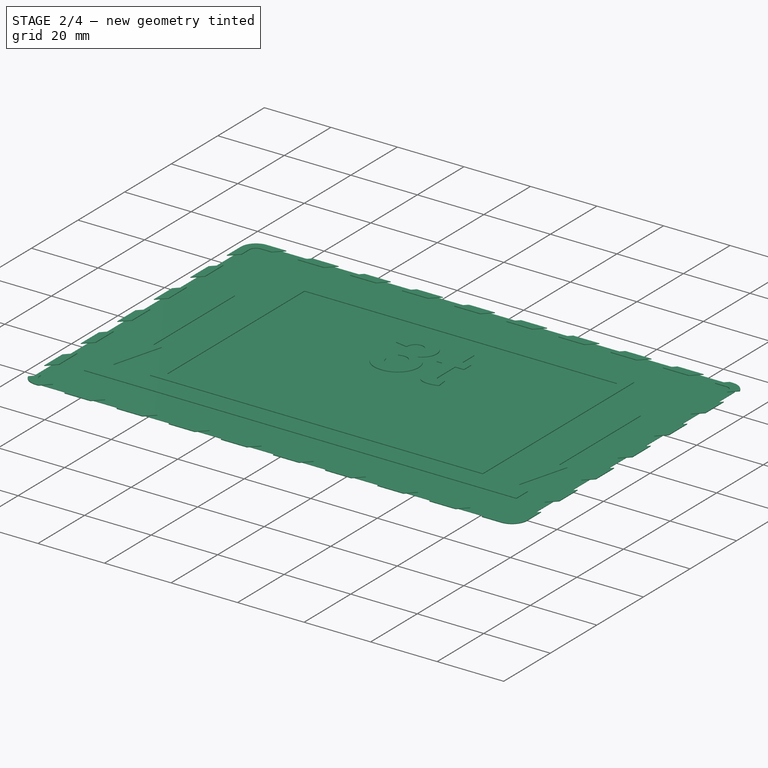
[diagram: stage 2 of 4 — iso view after this stage's code; geometry added in this stage tinted green]
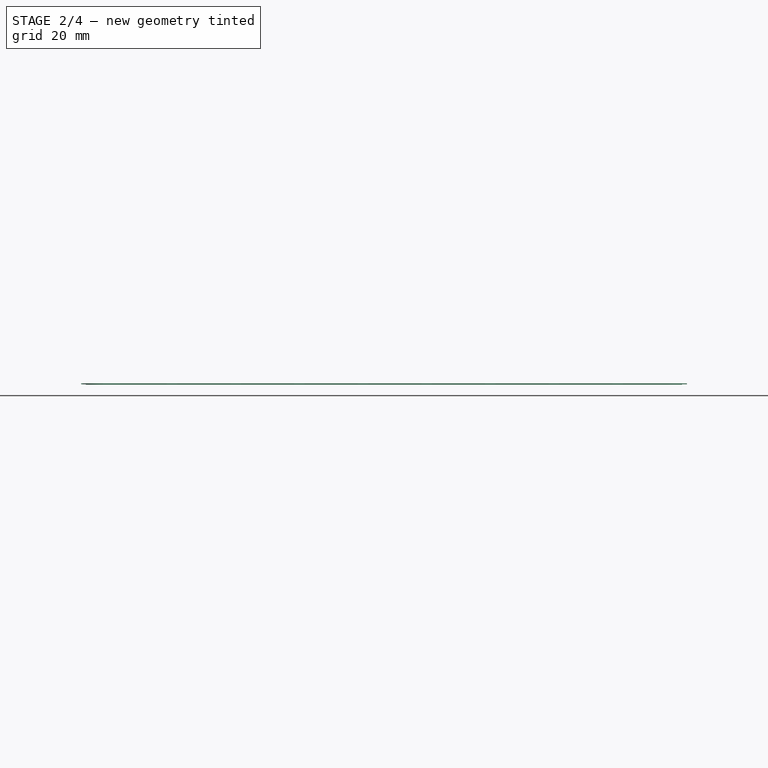
[diagram: stage 2 of 4 — front view after this stage's code; geometry added in this stage tinted green]
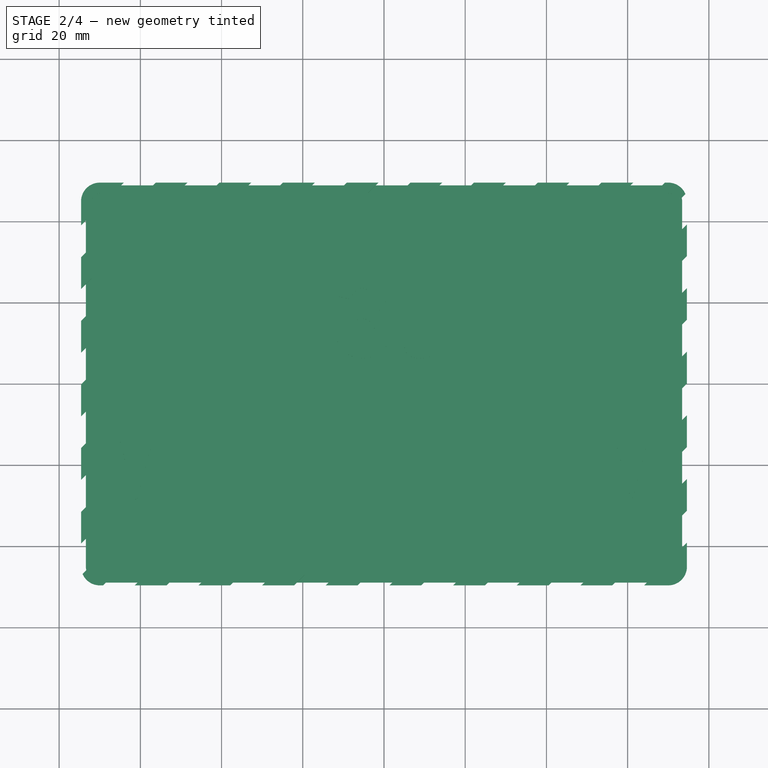
[diagram: stage 2 of 4 — top view after this stage's code; geometry added in this stage tinted green]
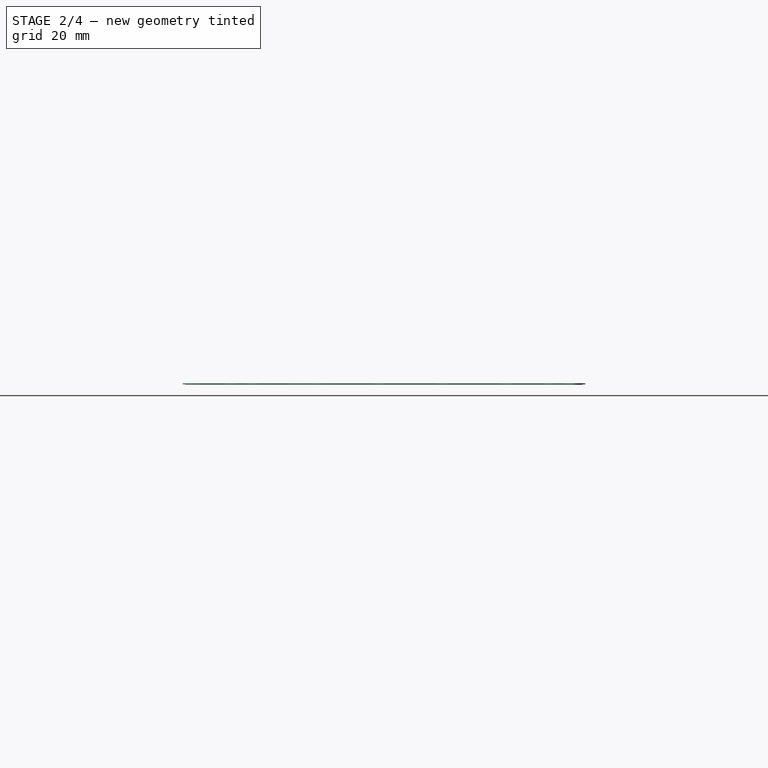
[diagram: stage 2 of 4 — right view after this stage's code; geometry added in this stage tinted green]
FEATURE [PartDesign::Body] Body  label="Körper"
  AllowCompound = false
  Group = -> [Sketch,Pad,Sketch001,Pocket,ShapeString002,ShapeString003,Pocket001,Pocket002]
  Origin = -> Origin
  Tip = -> Pocket002
FEATURE [Part::Part2DObjectPython] ShapeString  label="max_b"  # Draft 2D object (typed FeaturePython)
  FontFile = <path>
  Fuse = false
  Justification = 6
  JustificationReference = 0
  KeepLeftMargin = false
  MakeFace = true
  ObliqueAngle = 0
  Placement = pos=(-26.9468,-19.6666,-0.2) rot=(0,0,1;0rad)
  ScaleToSize = true
  Size = 20
  String = max
  Tracking = 0
FEATURE [Sketcher::SketchObject] Sketch007
  ArcFitTolerance = 1e-06
  AttachmentOffset = pos=(0,0,-0.2) rot=(0,0,1;0rad)
  AttachmentSupport = -> [XY_Plane001]
  FullyConstrained = true
  MakeInternals = false
  MapMode = 5
  Placement = pos=(0,0,-0.2) rot=(0,0,1;0rad)
  sketch-geometry (4):
    g0: LineSegment StartX=-26.3088 StartY=19.2003 StartZ=0 EndX=-26.3088 EndY=-19.2003 EndZ=0
    g1: LineSegment StartX=-26.3088 StartY=-19.2003 StartZ=0 EndX=26.3088 EndY=-19.2003 EndZ=0
    g2: LineSegment StartX=26.3088 StartY=-19.2003 StartZ=0 EndX=26.3088 EndY=19.2003 EndZ=0
    g3: LineSegment StartX=26.3088 StartY=19.2003 StartZ=0 EndX=-26.3088 EndY=19.2003 EndZ=0
  constraints (11):
    c: Coincident(g0,g1)
    c: Coincident(g1,g2)
    c: Coincident(g2,g3)
    c: Coincident(g3,g0)
    c: Vertical(g0)
    c: Vertical(g2)
    c: Horizontal(g1)
    c: Horizontal(g3)
    c: Symmetric(g1,g0,g-1)
    c: DistanceX(g3,g3) = 52.6177
    c: DistanceY(g2,g2) = 38.4005
FEATURE [PartDesign::Pad] Pad007
  Direction = (0,0,1)
  Length = 0.1
  Length2 = 10
  Profile = -> Sketch007
  ReferenceAxis = -> Sketch007 [N_Axis]
  Refine = true
  Reversed = true
  Suppressed = false
  Type = 0
FEATURE [PartDesign::Pad] Pad008  label="3"
  BaseFeature = -> Pad007
  Direction = (0,0,1)
  Length = 0.2
  Length2 = 10
  Profile = -> ShapeString001
  ReferenceAxis = -> ShapeString001 [N_Axis]
  Refine = true
  Suppressed = false
  Type = 0
FEATURE [PartDesign::Pad] Pad011
  BaseFeature = -> Pad010
  Direction = (0,0,1)
  Length = 0.2
  Length2 = 10
  Profile = -> Sketch003
  ReferenceAxis = -> Sketch003 [N_Axis]
  Refine = true
  Suppressed = false
  Type = 0
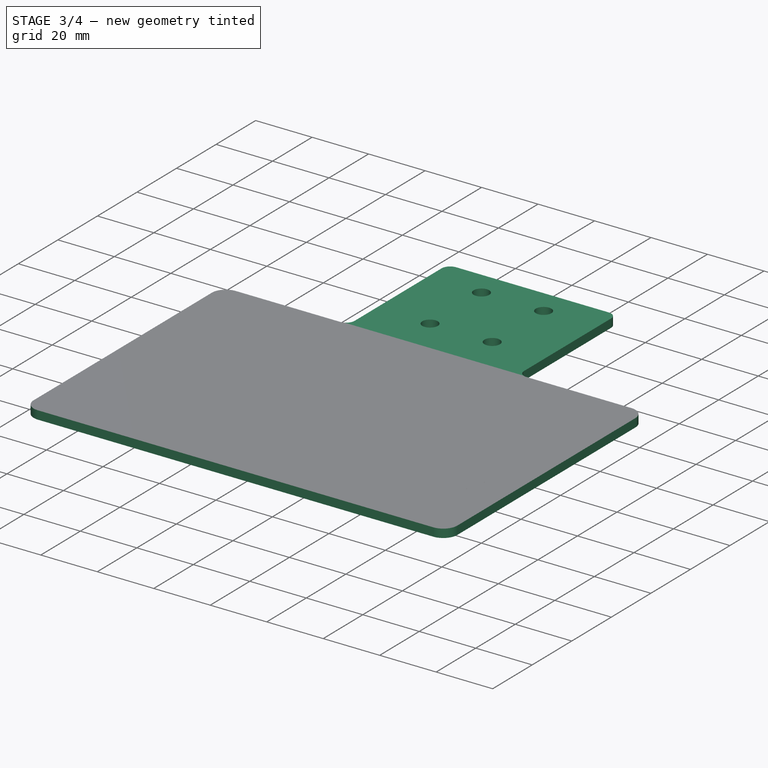
[diagram: stage 3 of 4 — iso view after this stage's code; geometry added in this stage tinted green]
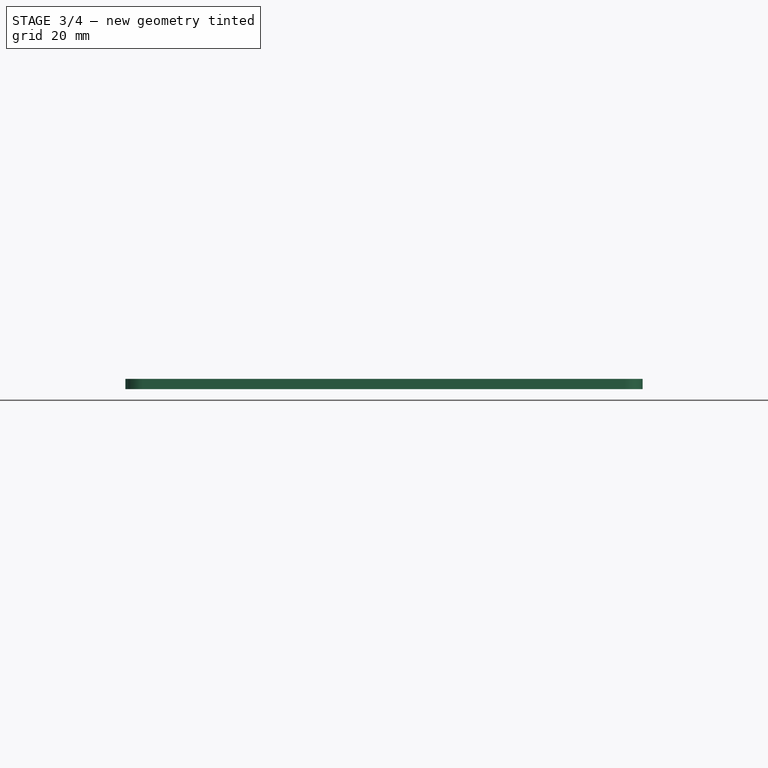
[diagram: stage 3 of 4 — front view after this stage's code; geometry added in this stage tinted green]
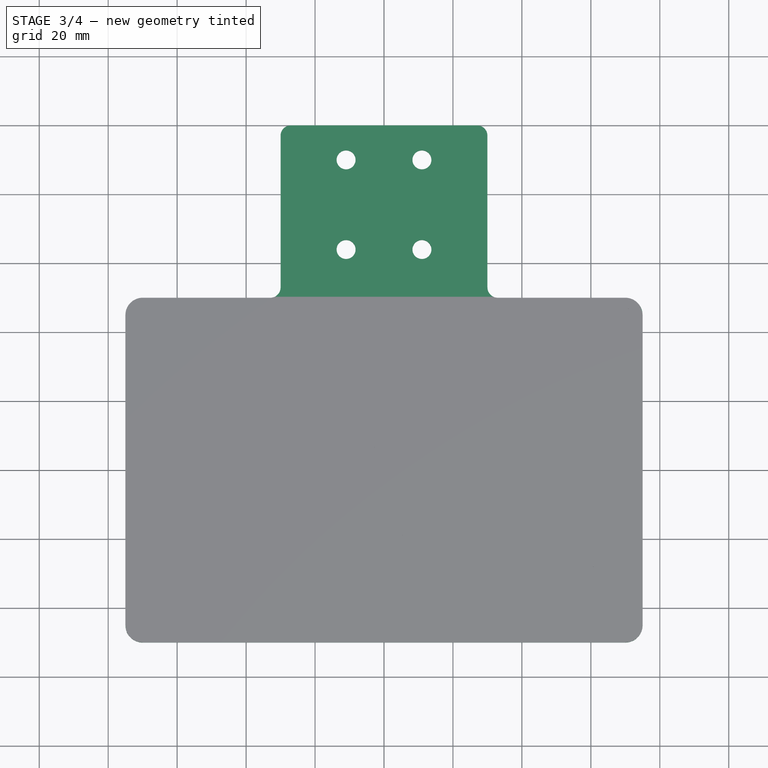
[diagram: stage 3 of 4 — top view after this stage's code; geometry added in this stage tinted green]
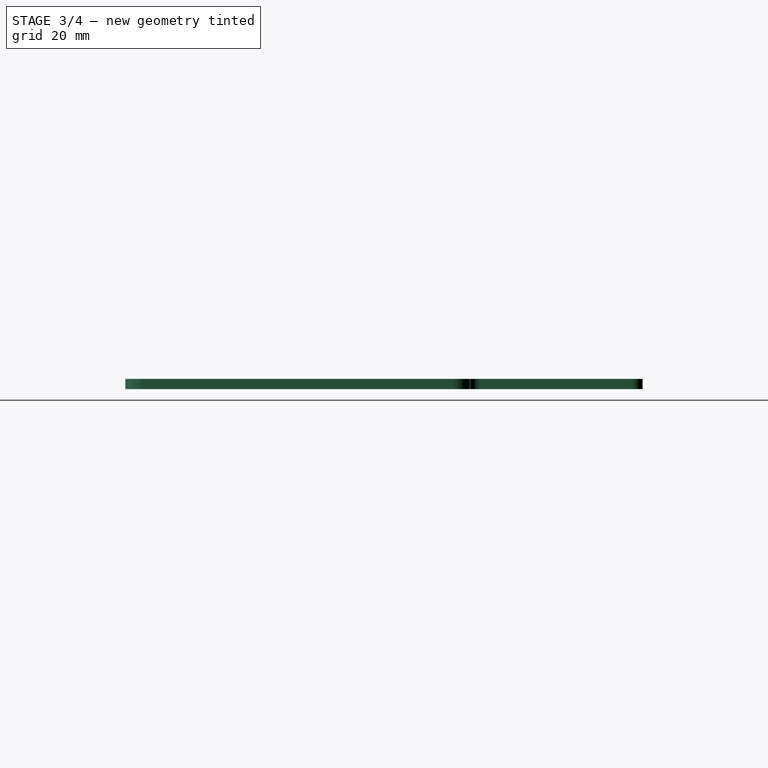
[diagram: stage 3 of 4 — right view after this stage's code; geometry added in this stage tinted green]
FEATURE [PartDesign::Pad] Pad
  Direction = (0,0,1)
  Length = 3
  Length2 = 10
  Profile = -> Sketch
  ReferenceAxis = -> Sketch [N_Axis]
  Refine = true
  Reversed = true
  Suppressed = false
  Type = 0
FEATURE [PartDesign::Pad] Pad009  label="m"
  BaseFeature = -> Pad008
  Direction = (0,0,1)
  Length = 0.2
  Length2 = 10
  Profile = -> ShapeString
  ReferenceAxis = -> ShapeString [N_Axis]
  Refine = true
  Suppressed = false
  Type = 0
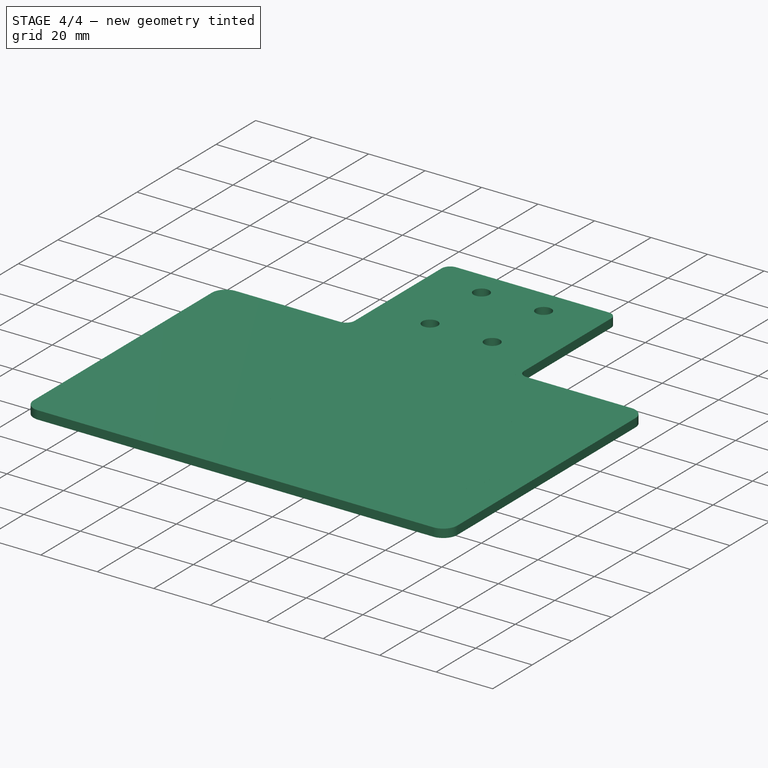
[diagram: stage 4 of 4 — iso view after this stage's code; geometry added in this stage tinted green]
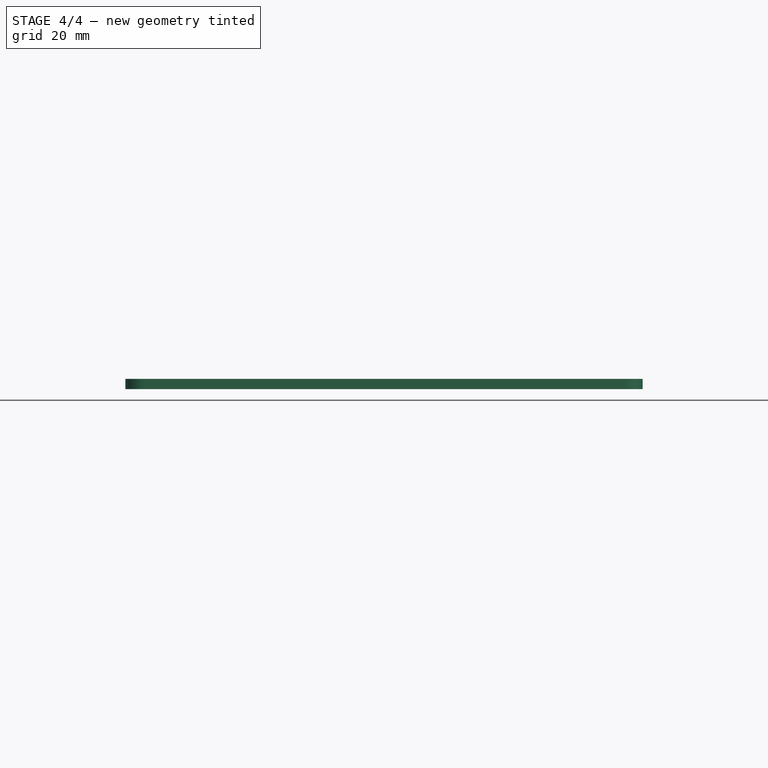
[diagram: stage 4 of 4 — front view after this stage's code; geometry added in this stage tinted green]
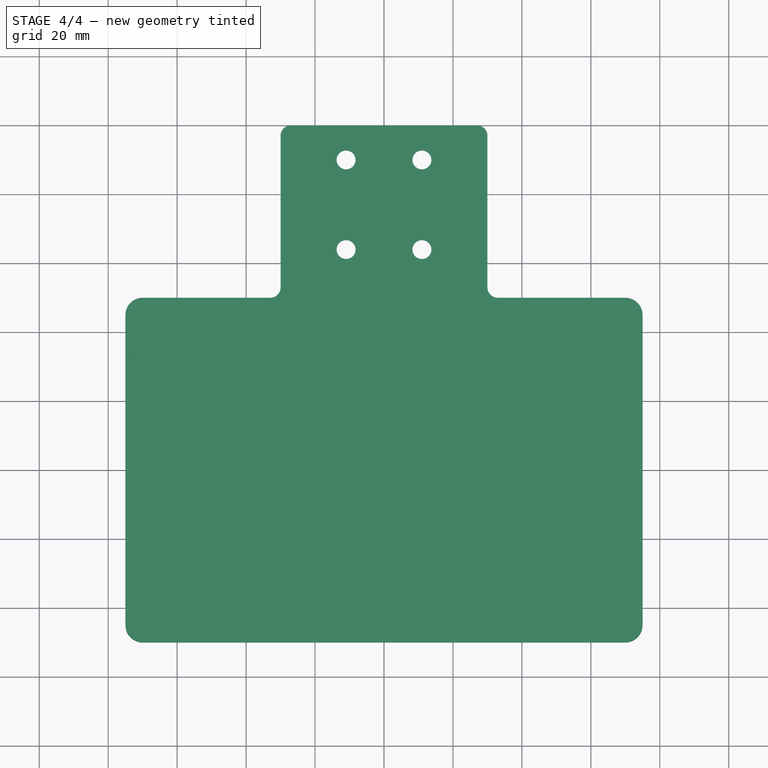
[diagram: stage 4 of 4 — top view after this stage's code; geometry added in this stage tinted green]
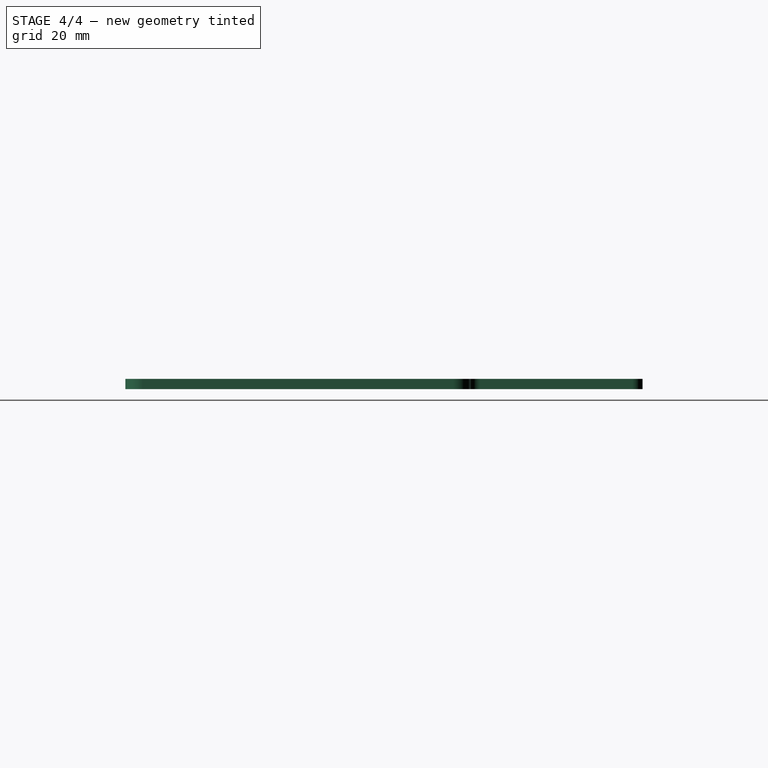
[diagram: stage 4 of 4 — right view after this stage's code; geometry added in this stage tinted green]
FEATURE [Sketcher::SketchObject] Sketch001
  ArcFitTolerance = 1e-06
  AttachmentSupport = -> [XY_Plane]
  ExternalGeometry = -> [Pad]
  FullyConstrained = false
  MakeInternals = false
  MapMode = 5
  sketch-geometry (266):
    g0: LineSegment StartX=-50 StartY=36 StartZ=0 EndX=-50 EndY=-29 EndZ=0
    g1: LineSegment StartX=50 StartY=-29 StartZ=0 EndX=50 EndY=36 EndZ=0
    g2: LineSegment StartX=50 StartY=36 StartZ=0 EndX=-50 EndY=36 EndZ=0
    g3: LineSegment StartX=65 StartY=-31 StartZ=0 EndX=-65 EndY=-31 EndZ=0
    g4: LineSegment StartX=-65 StartY=-31 StartZ=0 EndX=-65 EndY=-36 EndZ=0
    g5: LineSegment StartX=-65 StartY=-36 StartZ=0 EndX=65 EndY=-36 EndZ=0
    g6: LineSegment StartX=65 StartY=-36 StartZ=0 EndX=65 EndY=-31 EndZ=0
    g7: LineSegment StartX=-47 StartY=33 StartZ=0 EndX=-47 EndY=-26 EndZ=0
    g8: LineSegment StartX=47 StartY=-26 StartZ=0 EndX=47 EndY=33 EndZ=0
    g9: LineSegment StartX=47 StartY=33 StartZ=0 EndX=-47 EndY=33 EndZ=0
    g10: LineSegment [constr] StartX=47 StartY=33 StartZ=0 EndX=47 EndY=36 EndZ=0
    g11: LineSegment StartX=-47 StartY=-26 StartZ=0 EndX=47 EndY=-26 EndZ=0
    g12: LineSegment StartX=50 StartY=-29 StartZ=0 EndX=-50 EndY=-29 EndZ=0
    g13: LineSegment [constr] StartX=-47 StartY=-26 StartZ=0 EndX=-50 EndY=-26 EndZ=0
    g14: LineSegment [constr] StartX=47 StartY=33 StartZ=0 EndX=50 EndY=33 EndZ=0
    g15: LineSegment [constr] StartX=-47 StartY=-26 StartZ=0 EndX=-47 EndY=-29 EndZ=0
    g16: LineSegment StartX=-62.5 StartY=20.9282 StartZ=0 EndX=-62.5 EndY=-14.0718 EndZ=0
    g17: LineSegment StartX=-62.5 StartY=-14.0718 StartZ=0 EndX=-65 EndY=-14.0718 EndZ=0
    g18: LineSegment StartX=-65 StartY=-14.0718 StartZ=0 EndX=-61 EndY=-29 EndZ=0
    g19: LineSegment StartX=-61 StartY=-29 StartZ=0 EndX=-57 EndY=-14.0718 EndZ=0
    g20: LineSegment StartX=-57 StartY=-14.0718 StartZ=0 EndX=-59.5 EndY=-14.0718 EndZ=0
    g21: LineSegment StartX=-59.5 StartY=-14.0718 StartZ=0 EndX=-59.5 EndY=20.9282 EndZ=0
    g22: LineSegment StartX=-59.5 StartY=20.9282 StartZ=0 EndX=-62.5 EndY=20.9282 EndZ=0
    g23: LineSegment StartX=62.5 StartY=20.9282 StartZ=0 EndX=62.5 EndY=-14.0718 EndZ=0
    g24: LineSegment StartX=62.5 StartY=-14.0718 StartZ=0 EndX=65 EndY=-14.0718 EndZ=0
    g25: LineSegment StartX=65 StartY=-14.0718 StartZ=0 EndX=61 EndY=-29 EndZ=0
    g26: LineSegment StartX=61 StartY=-29 StartZ=0 EndX=57 EndY=-14.0718 EndZ=0
    g27: LineSegment StartX=57 StartY=-14.0718 StartZ=0 EndX=59.5 EndY=-14.0718 EndZ=0
    g28: LineSegment StartX=59.5 StartY=-14.0718 StartZ=0 EndX=59.5 EndY=20.9282 EndZ=0
    g29: LineSegment StartX=59.5 StartY=20.9282 StartZ=0 EndX=62.5 EndY=20.9282 EndZ=0
    g30: LineSegment StartX=70 StartY=-49.6 StartZ=0 EndX=64.0663 EndY=-49.6 EndZ=0
    g31: LineSegment StartX=-74.6 StartY=-39.3242 StartZ=0 EndX=-74.6 EndY=-31.4852 EndZ=0
    g32: ArcOfCircle CenterX=-70 CenterY=45 CenterZ=0 NormalX=0 NormalY=0 NormalZ=1 AngleXU=0 Radius=4.6 StartAngle=1.5708 EndAngle=3.14159
    g33: LineSegment StartX=-70 StartY=49.6 StartZ=0 EndX=-64.0663 EndY=49.6 EndZ=0
    g34: ArcOfCircle CenterX=70 CenterY=45 CenterZ=0 NormalX=0 NormalY=0 NormalZ=1 AngleXU=0 Radius=4.6 StartAngle=0.401469 EndAngle=1.5708
    g35: ArcOfCircle CenterX=70 CenterY=-45 CenterZ=0 NormalX=0 NormalY=0 NormalZ=1 AngleXU=0 Radius=4.6 StartAngle=4.71239 EndAngle=6.28319
    g36: LineSegment StartX=70 StartY=-47 StartZ=0 EndX=66.6663 EndY=-47 EndZ=0
    g37: ArcOfCircle CenterX=-70 CenterY=-45 CenterZ=0 NormalX=0 NormalY=0 NormalZ=1 AngleXU=0 Radius=2 StartAngle=3.14159 EndAngle=4.71239
    g38: LineSegment StartX=-72 StartY=-36.7242 StartZ=0 EndX=-72 EndY=-28.8852 EndZ=0
    g39: ArcOfCircle CenterX=-70 CenterY=45 CenterZ=0 NormalX=0 NormalY=0 NormalZ=1 AngleXU=0 Radius=2 StartAngle=1.5708 EndAngle=3.14159
    g40: LineSegment StartX=-70 StartY=47 StartZ=0 EndX=-66.6663 EndY=47 EndZ=0
    g41: ArcOfCircle CenterX=70 CenterY=45 CenterZ=0 NormalX=0 NormalY=0 NormalZ=1 AngleXU=0 Radius=2 StartAngle=1.7e-15 EndAngle=1.5708
    g42: LineSegment StartX=72 StartY=45 StartZ=0 EndX=72 EndY=44.5633 EndZ=0
    g43: ArcOfCircle CenterX=70 CenterY=-45 CenterZ=0 NormalX=0 NormalY=0 NormalZ=1 AngleXU=0 Radius=2 StartAngle=4.71239 EndAngle=6.28319
    g44: LineSegment [constr] StartX=126.693 StartY=13.0271 StartZ=0 EndX=122.774 EndY=16.9467 EndZ=0
    g45: LineSegment [constr] StartX=122.774 StartY=16.9467 StartZ=0 EndX=118.854 EndY=20.8662 EndZ=0
    g46: LineSegment [constr] StartX=118.854 StartY=20.8662 StartZ=0 EndX=114.935 EndY=24.7857 EndZ=0
    g47: LineSegment [constr] StartX=114.935 StartY=24.7857 StartZ=0 EndX=111.015 EndY=28.7052 EndZ=0
    g48: LineSegment [constr] StartX=111.015 StartY=28.7052 StartZ=0 EndX=107.096 EndY=32.6248 EndZ=0
    g49: LineSegment [constr] StartX=107.096 StartY=32.6248 StartZ=0 EndX=103.176 EndY=36.5443 EndZ=0
    g50: LineSegment [constr] StartX=103.176 StartY=36.5443 StartZ=0 EndX=99.2568 EndY=40.4638 EndZ=0
    g51: LineSegment [constr] StartX=99.2568 StartY=40.4638 StartZ=0 EndX=95.3372 EndY=44.3834 EndZ=0
    g52: LineSegment [constr] StartX=95.3372 StartY=44.3834 StartZ=0 EndX=91.4177 EndY=48.3029 EndZ=0
    g53: LineSegment [constr] StartX=91.4177 StartY=48.3029 StartZ=0 EndX=87.4982 EndY=52.2224 EndZ=0
    g54: LineSegment [constr] StartX=87.4982 StartY=52.2224 StartZ=0 EndX=83.5786 EndY=56.1419 EndZ=0
    g55: LineSegment [constr] StartX=83.5786 StartY=56.1419 StartZ=0 EndX=79.6591 EndY=60.0615 EndZ=0
    g56: LineSegment [constr] StartX=79.6591 StartY=60.0615 StartZ=0 EndX=75.7396 EndY=63.981 EndZ=0
    g57: LineSegment [constr] StartX=75.7396 StartY=63.981 StartZ=0 EndX=71.8201 EndY=67.9005 EndZ=0
    g58: LineSegment [constr] StartX=71.8201 StartY=67.9005 StartZ=0 EndX=67.9005 EndY=71.8201 EndZ=0
    g59: LineSegment [constr] StartX=67.9005 StartY=71.8201 StartZ=0 EndX=63.981 EndY=75.7396 EndZ=0
    g60: LineSegment [constr] StartX=63.981 StartY=75.7396 StartZ=0 EndX=60.0615 EndY=79.6591 EndZ=0
    g61: LineSegment [constr] StartX=60.0615 StartY=79.6591 StartZ=0 EndX=56.1419 EndY=83.5786 EndZ=0
    g62: LineSegment [constr] StartX=56.1419 StartY=83.5786 StartZ=0 EndX=52.2224 EndY=87.4982 EndZ=0
    g63: LineSegment [constr] StartX=52.2224 StartY=87.4982 StartZ=0 EndX=48.3029 EndY=91.4177 EndZ=0
    g64: LineSegment [constr] StartX=48.3029 StartY=91.4177 StartZ=0 EndX=44.3834 EndY=95.3372 EndZ=0
    g65: LineSegment [constr] StartX=44.3834 StartY=95.3372 StartZ=0 EndX=40.4638 EndY=99.2568 EndZ=0
    g66: LineSegment [constr] StartX=40.4638 StartY=99.2568 StartZ=0 EndX=36.5443 EndY=103.176 EndZ=0
    g67: LineSegment [constr] StartX=36.5443 StartY=103.176 StartZ=0 EndX=32.6248 EndY=107.096 EndZ=0
    g68: LineSegment [constr] StartX=32.6248 StartY=107.096 StartZ=0 EndX=28.7052 EndY=111.015 EndZ=0
    g69: LineSegment [constr] StartX=28.7052 StartY=111.015 StartZ=0 EndX=24.7857 EndY=114.935 EndZ=0
    g70: LineSegment [constr] StartX=24.7857 StartY=114.935 StartZ=0 EndX=20.8662 EndY=118.854 EndZ=0
    g71: LineSegment [constr] StartX=20.8662 StartY=118.854 StartZ=0 EndX=24.7857 EndY=114.935 EndZ=0
    g72: LineSegment [constr] StartX=24.7857 StartY=114.935 StartZ=0 EndX=20.8662 EndY=118.854 EndZ=0
    g73: LineSegment [constr] StartX=20.8662 StartY=118.854 StartZ=0 EndX=16.9467 EndY=122.774 EndZ=0
    g74: LineSegment [constr] StartX=16.9467 StartY=122.774 StartZ=0 EndX=20.8662 EndY=118.854 EndZ=0
    g75: LineSegment [constr] StartX=20.8662 StartY=118.854 StartZ=0 EndX=16.9467 EndY=122.774 EndZ=0
    g76: LineSegment [constr] StartX=16.9467 StartY=122.774 StartZ=0 EndX=13.0271 EndY=126.693 EndZ=0
    g77: LineSegment [constr] StartX=13.0271 StartY=126.693 StartZ=0 EndX=9.1076 EndY=130.613 EndZ=0
    g78: LineSegment [constr] StartX=9.1076 StartY=130.613 StartZ=0 EndX=-73.2527 EndY=48.2527 EndZ=0
    g79: LineSegment StartX=-74.6 StartY=39.0663 StartZ=0 EndX=-72 EndY=41.6663 EndZ=0
    g80: LineSegment StartX=-66.6663 StartY=47 StartZ=0 EndX=-64.0663 EndY=49.6 EndZ=0
    g81: LineSegment [constr] StartX=130.613 StartY=9.1076 StartZ=0 EndX=73.2527 EndY=-48.2527 EndZ=0
    g82: LineSegment StartX=-74.6 StartY=31.2273 StartZ=0 EndX=-72 EndY=33.8273 EndZ=0
    g83: LineSegment StartX=-58.8273 StartY=47 StartZ=0 EndX=-56.2273 EndY=49.6 EndZ=0
    g84: LineSegment StartX=-56.2273 StartY=49.6 StartZ=0 EndX=-48.3882 EndY=49.6 EndZ=0
    g85: LineSegment StartX=-58.8273 StartY=47 StartZ=0 EndX=-50.9882 EndY=47 EndZ=0
    g86: LineSegment StartX=-72 StartY=41.6663 StartZ=0 EndX=-72 EndY=45 EndZ=0
    g87: LineSegment StartX=-74.6 StartY=39.0663 StartZ=0 EndX=-74.6 EndY=45 EndZ=0
    g88: LineSegment StartX=-74.6 StartY=23.3882 StartZ=0 EndX=-72 EndY=25.9882 EndZ=0
    g89: LineSegment StartX=-50.9882 StartY=47 StartZ=0 EndX=-48.3882 EndY=49.6 EndZ=0
    g90: LineSegment StartX=-40.5492 StartY=49.6 StartZ=0 EndX=-43.1492 EndY=47 EndZ=0
    g91: LineSegment StartX=-72 StartY=18.1492 StartZ=0 EndX=-74.6 EndY=15.5492 EndZ=0
    g92: LineSegment [constr] StartX=-64.0663 StartY=49.6 StartZ=0 EndX=-56.2273 EndY=49.6 EndZ=0
    g93: LineSegment [constr] StartX=-66.6663 StartY=47 StartZ=0 EndX=-58.8273 EndY=47 EndZ=0
    g94: LineSegment [constr] StartX=-72 StartY=41.6663 StartZ=0 EndX=-72 EndY=33.8273 EndZ=0
    g95: LineSegment [constr] StartX=-74.6 StartY=39.0663 StartZ=0 EndX=-74.6 EndY=31.2273 EndZ=0
    g96: LineSegment StartX=-40.5492 StartY=49.6 StartZ=0 EndX=-32.7101 EndY=49.6 EndZ=0
    g97: LineSegment StartX=-43.1492 StartY=47 StartZ=0 EndX=-35.3101 EndY=47 EndZ=0
    g98: LineSegment StartX=-72 StartY=25.9882 StartZ=0 EndX=-72 EndY=33.8273 EndZ=0
    g99: LineSegment StartX=-74.6 StartY=23.3882 StartZ=0 EndX=-74.6 EndY=31.2273 EndZ=0
    g100: LineSegment [constr] StartX=-48.3882 StartY=49.6 StartZ=0 EndX=-40.5492 EndY=49.6 EndZ=0
    g101: LineSegment [constr] StartX=-50.9882 StartY=47 StartZ=0 EndX=-43.1492 EndY=47 EndZ=0
    g102: LineSegment [constr] StartX=-72 StartY=25.9882 StartZ=0 EndX=-72 EndY=18.1492 EndZ=0
    g103: LineSegment [constr] StartX=-74.6 StartY=23.3882 StartZ=0 EndX=-74.6 EndY=15.5492 EndZ=0
    g104: LineSegment StartX=-74.6 StartY=7.7101 StartZ=0 EndX=-72 EndY=10.3101 EndZ=0
    g105: LineSegment StartX=-72 StartY=2.47104 StartZ=0 EndX=-74.6 EndY=-0.128959 EndZ=0
    g106: LineSegment StartX=-32.7101 StartY=49.6 StartZ=0 EndX=-35.3101 EndY=47 EndZ=0
    g107: LineSegment StartX=-27.471 StartY=47 StartZ=0 EndX=-24.871 EndY=49.6 EndZ=0
    g108: LineSegment StartX=-24.871 StartY=49.6 StartZ=0 EndX=-17.032 EndY=49.6 EndZ=0
    g109: LineSegment StartX=-27.471 StartY=47 StartZ=0 EndX=-19.632 EndY=47 EndZ=0
    g110: LineSegment StartX=-72 StartY=10.3101 StartZ=0 EndX=-72 EndY=18.1492 EndZ=0
    g111: LineSegment StartX=-74.6 StartY=7.7101 StartZ=0 EndX=-74.6 EndY=15.5492 EndZ=0
    g112: LineSegment [constr] StartX=-72 StartY=10.3101 StartZ=0 EndX=-72 EndY=2.47104 EndZ=0
    g113: LineSegment [constr] StartX=-74.6 StartY=7.7101 StartZ=0 EndX=-74.6 EndY=-0.128959 EndZ=0
    g114: LineSegment [constr] StartX=-32.7101 StartY=49.6 StartZ=0 EndX=-24.871 EndY=49.6 EndZ=0
    g115: LineSegment [constr] StartX=-27.471 StartY=47 StartZ=0 EndX=-35.3101 EndY=47 EndZ=0
    g116: LineSegment StartX=-74.6 StartY=-7.96802 StartZ=0 EndX=-72 EndY=-5.36802 EndZ=0
    g117: LineSegment StartX=-72 StartY=-13.2071 StartZ=0 EndX=-74.6 EndY=-15.8071 EndZ=0
    g118: LineSegment StartX=-19.632 StartY=47 StartZ=0 EndX=-17.032 EndY=49.6 EndZ=0
    g119: LineSegment StartX=-11.7929 StartY=47 StartZ=0 EndX=-9.19293 EndY=49.6 EndZ=0
    g120: LineSegment StartX=-9.19293 StartY=49.6 StartZ=0 EndX=-1.35387 EndY=49.6 EndZ=0
    g121: LineSegment StartX=-11.7929 StartY=47 StartZ=0 EndX=-3.95387 EndY=47 EndZ=0
    g122: LineSegment StartX=-72 StartY=-5.36802 StartZ=0 EndX=-72 EndY=2.47104 EndZ=0
    g123: LineSegment StartX=-74.6 StartY=-7.96802 StartZ=0 EndX=-74.6 EndY=-0.128959 EndZ=0
    g124: LineSegment [constr] StartX=-72 StartY=-5.36802 StartZ=0 EndX=-72 EndY=-13.2071 EndZ=0
    g125: LineSegment [constr] StartX=-74.6 StartY=-7.96802 StartZ=0 EndX=-74.6 EndY=-15.8071 EndZ=0
    g126: LineSegment [constr] StartX=-17.032 StartY=49.6 StartZ=0 EndX=-9.19293 EndY=49.6 EndZ=0
    g127: LineSegment [constr] StartX=-19.632 StartY=47 StartZ=0 EndX=-11.7929 EndY=47 EndZ=0
    g128: LineSegment StartX=-3.95387 StartY=47 StartZ=0 EndX=-1.35387 EndY=49.6 EndZ=0
    g129: LineSegment StartX=6.48519 StartY=49.6 StartZ=0 EndX=3.88519 EndY=47 EndZ=0
    g130: LineSegment StartX=-74.6 StartY=-23.6461 StartZ=0 EndX=-72 EndY=-21.0461 EndZ=0
    g131: LineSegment StartX=-72 StartY=-28.8852 StartZ=0 EndX=-74.6 EndY=-31.4852 EndZ=0
    g132: LineSegment StartX=3.88519 StartY=47 StartZ=0 EndX=11.7242 EndY=47 EndZ=0
    g133: LineSegment StartX=-72 StartY=-21.0461 StartZ=0 EndX=-72 EndY=-13.2071 EndZ=0
    g134: LineSegment StartX=-74.6 StartY=-23.6461 StartZ=0 EndX=-74.6 EndY=-15.8071 EndZ=0
    g135: LineSegment [constr] StartX=-1.35387 StartY=49.6 StartZ=0 EndX=6.48519 EndY=49.6 EndZ=0
    g136: LineSegment [constr] StartX=-3.95387 StartY=47 StartZ=0 EndX=3.88519 EndY=47 EndZ=0
    g137: LineSegment [constr] StartX=-72 StartY=-21.0461 StartZ=0 EndX=-72 EndY=-28.8852 EndZ=0
    g138: LineSegment [constr] StartX=-74.6 StartY=-23.6461 StartZ=0 EndX=-74.6 EndY=-31.4852 EndZ=0
    g139: LineSegment StartX=-74.6 StartY=-39.3242 StartZ=0 EndX=-72 EndY=-36.7242 EndZ=0
    g140: LineSegment StartX=11.7242 StartY=47 StartZ=0 EndX=14.3242 EndY=49.6 EndZ=0
    g141: LineSegment StartX=22.1633 StartY=49.6 StartZ=0 EndX=19.5633 EndY=47 EndZ=0
    g142: ArcOfCircle CenterX=-70 CenterY=-45 CenterZ=0 NormalX=0 NormalY=0 NormalZ=1 AngleXU=0 Radius=4.6 StartAngle=3.54306 EndAngle=4.71239
    g143: LineSegment StartX=22.1633 StartY=49.6 StartZ=0 EndX=30.0024 EndY=49.6 EndZ=0
    g144: LineSegment StartX=19.5633 StartY=47 StartZ=0 EndX=27.4024 EndY=47 EndZ=0
    g145: LineSegment StartX=6.48519 StartY=49.6 StartZ=0 EndX=14.3242 EndY=49.6 EndZ=0
    g146: LineSegment [constr] StartX=14.3242 StartY=49.6 StartZ=0 EndX=22.1633 EndY=49.6 EndZ=0
    g147: LineSegment [constr] StartX=19.5633 StartY=47 StartZ=0 EndX=11.7242 EndY=47 EndZ=0
    g148: LineSegment [constr] StartX=-72 StartY=-36.7242 StartZ=0 EndX=-72 EndY=-44.5633 EndZ=0
    g149: LineSegment StartX=-69.1976 StartY=-49.6 StartZ=0 EndX=-66.5976 EndY=-47 EndZ=0
    g150: LineSegment StartX=-61.3586 StartY=-49.6 StartZ=0 EndX=-58.7586 EndY=-47 EndZ=0
    g151: LineSegment StartX=-50.9195 StartY=-47 StartZ=0 EndX=-53.5195 EndY=-49.6 EndZ=0
    g152: LineSegment StartX=-45.6805 StartY=-49.6 StartZ=0 EndX=-43.0805 EndY=-47 EndZ=0
    g153: LineSegment StartX=-35.2414 StartY=-47 StartZ=0 EndX=-37.8414 EndY=-49.6 EndZ=0
    g154: LineSegment StartX=-27.4024 StartY=-47 StartZ=0 EndX=-30.0024 EndY=-49.6 EndZ=0
    g155: LineSegment StartX=27.4024 StartY=47 StartZ=0 EndX=30.0024 EndY=49.6 EndZ=0
    g156: LineSegment StartX=37.8414 StartY=49.6 StartZ=0 EndX=35.2414 EndY=47 EndZ=0
    g157: LineSegment StartX=43.0805 StartY=47 StartZ=0 EndX=45.6805 EndY=49.6 EndZ=0
    g158: LineSegment StartX=53.5195 StartY=49.6 StartZ=0 EndX=50.9195 EndY=47 EndZ=0
    g159: LineSegment StartX=74.2342 StartY=46.7975 StartZ=0 EndX=72 EndY=44.5633 EndZ=0
    g160: LineSegment StartX=-66.5976 StartY=-47 StartZ=0 EndX=-70 EndY=-47 EndZ=0
    g161: LineSegment StartX=-69.1976 StartY=-49.6 StartZ=0 EndX=-70 EndY=-49.6 EndZ=0
    g162: LineSegment StartX=-50.9195 StartY=-47 StartZ=0 EndX=-58.7586 EndY=-47 EndZ=0
    g163: LineSegment StartX=-53.5195 StartY=-49.6 StartZ=0 EndX=-61.3586 EndY=-49.6 EndZ=0
    g164: LineSegment StartX=-35.2414 StartY=-47 StartZ=0 EndX=-43.0805 EndY=-47 EndZ=0
    g165: LineSegment StartX=-37.8414 StartY=-49.6 StartZ=0 EndX=-45.6805 EndY=-49.6 EndZ=0
    g166: LineSegment StartX=35.2414 StartY=47 StartZ=0 EndX=43.0805 EndY=47 EndZ=0
    g167: LineSegment StartX=37.8414 StartY=49.6 StartZ=0 EndX=45.6805 EndY=49.6 EndZ=0
    g168: LineSegment StartX=53.5195 StartY=49.6 StartZ=0 EndX=61.3586 EndY=49.6 EndZ=0
    g169: LineSegment StartX=61.3586 StartY=49.6 StartZ=0 EndX=58.7586 EndY=47 EndZ=0
    g170: LineSegment StartX=50.9195 StartY=47 StartZ=0 EndX=58.7586 EndY=47 EndZ=0
    g171: LineSegment [constr] StartX=30.0024 StartY=49.6 StartZ=0 EndX=37.8414 EndY=49.6 EndZ=0
    g172: LineSegment [constr] StartX=27.4024 StartY=47 StartZ=0 EndX=35.2414 EndY=47 EndZ=0
    g173: LineSegment [constr] StartX=45.6805 StartY=49.6 StartZ=0 EndX=53.5195 EndY=49.6 EndZ=0
    g174: LineSegment [constr] StartX=43.0805 StartY=47 StartZ=0 EndX=50.9195 EndY=47 EndZ=0
    g175: LineSegment [constr] StartX=-66.5976 StartY=-47 StartZ=0 EndX=-58.7586 EndY=-47 EndZ=0
    g176: LineSegment [constr] StartX=-69.1976 StartY=-49.6 StartZ=0 EndX=-61.3586 EndY=-49.6 EndZ=0
    g177: LineSegment [constr] StartX=-50.9195 StartY=-47 StartZ=0 EndX=-43.0805 EndY=-47 EndZ=0
    g178: LineSegment [constr] StartX=-53.5195 StartY=-49.6 StartZ=0 EndX=-45.6805 EndY=-49.6 EndZ=0
    g179: LineSegment StartX=72 StartY=36.7242 StartZ=0 EndX=74.6 EndY=39.3242 EndZ=0
    g180: LineSegment StartX=72 StartY=36.7242 StartZ=0 EndX=72 EndY=28.8852 EndZ=0
    g181: LineSegment StartX=74.6 StartY=39.3242 StartZ=0 EndX=74.6 EndY=31.4852 EndZ=0
    g182: LineSegment [constr] StartX=72 StartY=44.5633 StartZ=0 EndX=72 EndY=36.7242 EndZ=0
    g183: LineSegment [constr] StartX=-35.2414 StartY=-47 StartZ=0 EndX=-27.4024 EndY=-47 EndZ=0
    g184: LineSegment [constr] StartX=-37.8414 StartY=-49.6 StartZ=0 EndX=-30.0024 EndY=-49.6 EndZ=0
    g185: ArcOfCircle [constr] CenterX=70 CenterY=45 CenterZ=0 NormalX=0 NormalY=0 NormalZ=1 AngleXU=0 Radius=2 StartAngle=1.5708 EndAngle=2.06578
    g186: LineSegment [constr] StartX=61.3586 StartY=49.6 StartZ=0 EndX=69.8872 EndY=49.6 EndZ=0
    g187: LineSegment [constr] StartX=58.7586 StartY=47 StartZ=0 EndX=66.5976 EndY=47 EndZ=0
    g188: ArcOfCircle [constr] CenterX=-70 CenterY=-45 CenterZ=0 NormalX=0 NormalY=0 NormalZ=1 AngleXU=0 Radius=4.6 StartAngle=3.14159 EndAngle=3.54306
    g189: LineSegment [constr] StartX=-74.6 StartY=-39.3242 StartZ=0 EndX=-74.6 EndY=-45 EndZ=0
    g190: LineSegment StartX=-22.1633 StartY=-49.6 StartZ=0 EndX=-19.5633 EndY=-47 EndZ=0
    g191: LineSegment StartX=-14.3242 StartY=-49.6 StartZ=0 EndX=-11.7242 EndY=-47 EndZ=0
    g192: LineSegment StartX=-6.48519 StartY=-49.6 StartZ=0 EndX=-3.88519 EndY=-47 EndZ=0
    g193: LineSegment StartX=1.35387 StartY=-49.6 StartZ=0 EndX=3.95387 EndY=-47 EndZ=0
    g194: LineSegment StartX=72 StartY=28.8852 StartZ=0 EndX=74.6 EndY=31.4852 EndZ=0
    g195: LineSegment StartX=74.6 StartY=23.6461 StartZ=0 EndX=72 EndY=21.0461 EndZ=0
    g196: LineSegment StartX=74.6 StartY=15.8071 StartZ=0 EndX=72 EndY=13.2071 EndZ=0
    g197: LineSegment StartX=72 StartY=5.36802 StartZ=0 EndX=74.6 EndY=7.96802 EndZ=0
    g198: LineSegment StartX=72 StartY=-2.47104 StartZ=0 EndX=74.6 EndY=0.128959 EndZ=0
    g199: LineSegment StartX=74.6 StartY=-7.7101 StartZ=0 EndX=72 EndY=-10.3101 EndZ=0
    g200: LineSegment StartX=9.19293 StartY=-49.6 StartZ=0 EndX=11.7929 EndY=-47 EndZ=0
    g201: LineSegment StartX=48.3882 StartY=-49.6 StartZ=0 EndX=50.9882 EndY=-47 EndZ=0
    g202: LineSegment StartX=40.5492 StartY=-49.6 StartZ=0 EndX=43.1492 EndY=-47 EndZ=0
    g203: LineSegment StartX=17.032 StartY=-49.6 StartZ=0 EndX=19.632 EndY=-47 EndZ=0
    g204: LineSegment StartX=24.871 StartY=-49.6 StartZ=0 EndX=27.471 EndY=-47 EndZ=0
    g205: LineSegment StartX=32.7101 StartY=-49.6 StartZ=0 EndX=35.3101 EndY=-47 EndZ=0
    g206: LineSegment StartX=56.2273 StartY=-49.6 StartZ=0 EndX=58.8273 EndY=-47 EndZ=0
    g207: LineSegment StartX=-22.1633 StartY=-49.6 StartZ=0 EndX=-30.0024 EndY=-49.6 EndZ=0
    g208: LineSegment StartX=-19.5633 StartY=-47 StartZ=0 EndX=-27.4024 EndY=-47 EndZ=0
    g209: LineSegment StartX=-14.3242 StartY=-49.6 StartZ=0 EndX=-6.48519 EndY=-49.6 EndZ=0
    g210: LineSegment StartX=-11.7242 StartY=-47 StartZ=0 EndX=-3.88519 EndY=-47 EndZ=0
    g211: LineSegment StartX=11.7929 StartY=-47 StartZ=0 EndX=3.95387 EndY=-47 EndZ=0
    g212: LineSegment StartX=9.19293 StartY=-49.6 StartZ=0 EndX=1.35387 EndY=-49.6 EndZ=0
    g213: LineSegment StartX=27.471 StartY=-47 StartZ=0 EndX=19.632 EndY=-47 EndZ=0
    g214: LineSegment StartX=24.871 StartY=-49.6 StartZ=0 EndX=17.032 EndY=-49.6 EndZ=0
    g215: LineSegment StartX=40.5492 StartY=-49.6 StartZ=0 EndX=32.7101 EndY=-49.6 EndZ=0
    g216: LineSegment StartX=43.1492 StartY=-47 StartZ=0 EndX=35.3101 EndY=-47 EndZ=0
    g217: LineSegment [constr] StartX=-22.1633 StartY=-49.6 StartZ=0 EndX=-14.3242 EndY=-49.6 EndZ=0
    g218: LineSegment [constr] StartX=-19.5633 StartY=-47 StartZ=0 EndX=-11.7242 EndY=-47 EndZ=0
    g219: LineSegment [constr] StartX=-6.48519 StartY=-49.6 StartZ=0 EndX=1.35387 EndY=-49.6 EndZ=0
    g220: LineSegment [constr] StartX=-3.88519 StartY=-47 StartZ=0 EndX=3.95387 EndY=-47 EndZ=0
    g221: LineSegment [constr] StartX=9.19293 StartY=-49.6 StartZ=0 EndX=17.032 EndY=-49.6 EndZ=0
    g222: LineSegment [constr] StartX=11.7929 StartY=-47 StartZ=0 EndX=19.632 EndY=-47 EndZ=0
    g223: LineSegment [constr] StartX=27.471 StartY=-47 StartZ=0 EndX=35.3101 EndY=-47 EndZ=0
    g224: LineSegment [constr] StartX=24.871 StartY=-49.6 StartZ=0 EndX=32.7101 EndY=-49.6 EndZ=0
    g225: LineSegment [constr] StartX=43.1492 StartY=-47 StartZ=0 EndX=50.9882 EndY=-47 EndZ=0
    g226: LineSegment [constr] StartX=40.5492 StartY=-49.6 StartZ=0 EndX=48.3882 EndY=-49.6 EndZ=0
    g227: LineSegment [constr] StartX=126.693 StartY=13.0271 StartZ=0 EndX=130.613 EndY=9.1076 EndZ=0
    g228: LineSegment StartX=69.1976 StartY=49.6 StartZ=0 EndX=66.5976 EndY=47 EndZ=0
    g229: LineSegment StartX=64.0663 StartY=-49.6 StartZ=0 EndX=66.6663 EndY=-47 EndZ=0
    g230: LineSegment StartX=58.8273 StartY=-47 StartZ=0 EndX=50.9882 EndY=-47 EndZ=0
    g231: LineSegment StartX=56.2273 StartY=-49.6 StartZ=0 EndX=48.3882 EndY=-49.6 EndZ=0
    g232: LineSegment [constr] StartX=58.8273 StartY=-47 StartZ=0 EndX=66.6663 EndY=-47 EndZ=0
    g233: LineSegment [constr] StartX=64.0663 StartY=-49.6 StartZ=0 EndX=56.2273 EndY=-49.6 EndZ=0
    g234: ArcOfCircle [constr] CenterX=70 CenterY=45 CenterZ=0 NormalX=0 NormalY=0 NormalZ=1 AngleXU=0 Radius=4.6 StartAngle=7e-16 EndAngle=0.401469
    g235: LineSegment [constr] StartX=74.6 StartY=39.3242 StartZ=0 EndX=74.6 EndY=45 EndZ=0
    g236: LineSegment StartX=66.5976 StartY=47 StartZ=0 EndX=70 EndY=47 EndZ=0
    g237: LineSegment StartX=69.1976 StartY=49.6 StartZ=0 EndX=70 EndY=49.6 EndZ=0
    g238: LineSegment StartX=-74.2342 StartY=-46.7975 StartZ=0 EndX=-72 EndY=-44.5633 EndZ=0
    g239: LineSegment StartX=-72 StartY=-44.5633 StartZ=0 EndX=-72 EndY=-45 EndZ=0
    g240: LineSegment StartX=74.6 StartY=23.6461 StartZ=0 EndX=74.6 EndY=15.8071 EndZ=0
    g241: LineSegment StartX=72 StartY=21.0461 StartZ=0 EndX=72 EndY=13.2071 EndZ=0
    g242: LineSegment StartX=74.6 StartY=7.96802 StartZ=0 EndX=74.6 EndY=0.128959 EndZ=0
    g243: LineSegment StartX=72 StartY=5.36802 StartZ=0 EndX=72 EndY=-2.47104 EndZ=0
    g244: LineSegment StartX=74.6 StartY=-7.7101 StartZ=0 EndX=74.6 EndY=-15.5492 EndZ=0
    g245: LineSegment StartX=72 StartY=-10.3101 StartZ=0 EndX=72 EndY=-18.1492 EndZ=0
    g246: LineSegment [constr] StartX=74.6 StartY=31.4852 StartZ=0 EndX=74.6 EndY=23.6461 EndZ=0
    g247: LineSegment [constr] StartX=72 StartY=28.8852 StartZ=0 EndX=72 EndY=21.0461 EndZ=0
    g248: LineSegment [constr] StartX=74.6 StartY=15.8071 StartZ=0 EndX=74.6 EndY=7.96802 EndZ=0
    g249: LineSegment [constr] StartX=72 StartY=13.2071 StartZ=0 EndX=72 EndY=5.36802 EndZ=0
    g250: LineSegment [constr] StartX=74.6 StartY=0.128959 StartZ=0 EndX=74.6 EndY=-7.7101 EndZ=0
    g251: LineSegment [constr] StartX=72 StartY=-2.47104 StartZ=0 EndX=72 EndY=-10.3101 EndZ=0
    g252: LineSegment StartX=72 StartY=-41.6663 StartZ=0 EndX=74.6 EndY=-39.0663 EndZ=0
    g253: LineSegment StartX=74.6 StartY=-23.3882 StartZ=0 EndX=72 EndY=-25.9882 EndZ=0
    g254: LineSegment StartX=72 StartY=-18.1492 StartZ=0 EndX=74.6 EndY=-15.5492 EndZ=0
    g255: LineSegment StartX=72 StartY=-33.8273 StartZ=0 EndX=74.6 EndY=-31.2273 EndZ=0
    g256: LineSegment StartX=72 StartY=-25.9882 StartZ=0 EndX=72 EndY=-33.8273 EndZ=0
    g257: LineSegment StartX=74.6 StartY=-39.0663 StartZ=0 EndX=74.6 EndY=-45 EndZ=0
    g258: LineSegment StartX=72 StartY=-41.6663 StartZ=0 EndX=72 EndY=-45 EndZ=0
    g259: LineSegment StartX=74.6 StartY=-31.2273 StartZ=0 EndX=74.6 EndY=-23.3882 EndZ=0
    g260: LineSegment [constr] StartX=74.6 StartY=-15.5492 StartZ=0 EndX=74.6 EndY=-23.3882 EndZ=0
    g261: LineSegment [constr] StartX=72 StartY=-18.1492 StartZ=0 EndX=72 EndY=-25.9882 EndZ=0
    g262: LineSegment [constr] StartX=74.6 StartY=-31.2273 StartZ=0 EndX=74.6 EndY=-39.0663 EndZ=0
    g263: LineSegment [constr] StartX=72 StartY=-33.8273 StartZ=0 EndX=72 EndY=-41.6663 EndZ=0
    g264: LineSegment [constr] StartX=-3.4e-15 StartY=-36 StartZ=0 EndX=0 EndY=0 EndZ=0
    g265: LineSegment [constr] StartX=0 StartY=0 StartZ=0 EndX=9e-16 EndY=36 EndZ=0
  constraints (766):
    c: Coincident(g1,g2)
    c: Coincident(g2,g0)
    c: Vertical(g0)
    c: Vertical(g1)
    c: Horizontal(g3)
    c: Coincident(g3,g4)
    c: Coincident(g4,g5)
    c: Coincident(g5,g6)
    c: Vertical(g6)
    c: Vertical(g4)
    c: Symmetric(g0,g1,g-2)
    c: DistanceX(g5,g5) = 130
    c: DistanceY(g6,g6) = 5
    c: DistanceX(g2,g2) = 100
    c: DistanceY(g1,g1) = 65
    c: Coincident(g8,g9)
    c: Coincident(g9,g7)
    c: Vertical(g7)
    c: Vertical(g8)
    c: Horizontal(g9)
    c: Coincident(g8,g10)
    c: PointOnObject(g10,g2)
    c: Vertical(g10)
    c: DistanceY(g10,g10) = 3
    c: Coincident(g3,g6)
    c: Coincident(g7,g11)
    c: Coincident(g11,g8)
    c: Horizontal(g11)
    c: Coincident(g1,g12)
    c: Coincident(g12,g0)
    c: Horizontal(g12)
    c: Distance(g1,g3) = 2
    c: Coincident(g7,g13)
    c: PointOnObject(g13,g0)
    c: Horizontal(g13)
    c: Coincident(g8,g14)
    c: PointOnObject(g14,g1)
    c: Horizontal(g14)
    c: Coincident(g7,g15)
    c: PointOnObject(g15,g12)
    c: Vertical(g15)
    c: Equal(g15,g13)
    c: Equal(g13,g14)
    c: Equal(g14,g10)
    c: Symmetric(g5,g4,g-2)
    c: Vertical(g16)
    c: Coincident(g16,g17)
    c: Horizontal(g17)
    c: Coincident(g17,g18)
    c: Coincident(g18,g19)
    c: Coincident(g19,g20)
    c: Horizontal(g20)
    c: Coincident(g20,g21)
    c: Vertical(g21)
    c: Coincident(g21,g22)
    c: Horizontal(g22)
    c: Coincident(g16,g22)
    c: Equal(g20,g17)
    c: Horizontal(g16,g20)
    c: Equal(g18,g19)
    c: Equal(g22,g10)
    c: Horizontal(g0,g18)
    c: DistanceX(g17,g19) = 8
    c: Angle(g19,g18) = 0.523599
    c: Vertical(g23)
    c: Coincident(g23,g24)
    c: Horizontal(g24)
    c: Coincident(g24,g25)
    c: Coincident(g25,g26)
    c: Coincident(g26,g27)
    c: Horizontal(g27)
    c: Coincident(g27,g28)
    c: Vertical(g28)
    c: Coincident(g28,g29)
    c: Horizontal(g29)
    c: Coincident(g23,g29)
    c: Equal(g27,g24)
    c: Equal(g25,g26)
    c: Angle(g26,g25) = -0.523599
    c: Horizontal(g23,g27)
    c: Equal(g29,g10)
    c: DistanceY(g28,g28) = 35
    c: DistanceX(g26,g24) = 8
    c: Symmetric(g25,g18,g-2)
    c: Vertical(g24,g3)
    c: Horizontal(g36)
    c: Tangent(g39,g40) = 1.5708
    c: Tangent(g41,g42) = 1.5708
    c: Horizontal(g40)
    c: Vertical(g42)
    c: Tangent(g43,g36) = 1.5708
    c: Vertical(g38)
    c: Equal(g43,g41)
    c: Equal(g41,g39)
    c: Equal(g39,g37)
    c: Coincident(g32,g39)
    c: Coincident(g32,g-3)
    c: Coincident(g35,g43)
    c: Coincident(g44,g45)
    c: Coincident(g45,g46)
    c: Coincident(g46,g47)
    c: Coincident(g47,g48)
    c: Coincident(g48,g49)
    c: Coincident(g49,g50)
    c: Coincident(g50,g51)
    c: Coincident(g51,g52)
    c: Coincident(g52,g53)
    c: Coincident(g53,g54)
    c: Coincident(g54,g55)
    c: Coincident(g55,g56)
    c: Coincident(g56,g57)
    c: Coincident(g57,g58)
    c: Coincident(g58,g59)
    c: Coincident(g59,g60)
    c: Coincident(g60,g61)
    c: Coincident(g61,g62)
    c: Coincident(g62,g63)
    c: Coincident(g63,g64)
    c: Coincident(g64,g65)
    c: Coincident(g65,g66)
    c: Coincident(g66,g67)
    c: Coincident(g67,g68)
    c: Coincident(g68,g69)
    c: Coincident(g69,g70)
    c: Coincident(g70,g71)
    c: Coincident(g71,g72)
    c: Equal(g44,g45)
    c: Equal(g45,g46)
    c: Equal(g46,g47)
    c: Equal(g47,g48)
    c: Equal(g48,g49)
    c: Equal(g49,g50)
    c: Equal(g50,g51)
    c: Equal(g51,g52)
    c: Equal(g52,g53)
    c: Equal(g53,g54)
    c: Equal(g54,g55)
    c: Equal(g55,g56)
    c: Equal(g56,g57)
    c: Equal(g57,g58)
    c: Equal(g58,g59)
    c: Equal(g59,g60)
    c: Equal(g60,g61)
    c: Equal(g61,g62)
    c: Equal(g62,g63)
    c: Equal(g63,g64)
    c: Equal(g64,g65)
    c: Equal(g65,g66)
    c: Equal(g66,g67)
    c: Equal(g67,g68)
    c: Equal(g68,g69)
    c: Equal(g69,g70)
    c: Equal(g70,g71)
    c: Parallel(g44,g45)
    c: Parallel(g45,g46)
    c: Parallel(g46,g47)
    c: Parallel(g47,g48)
    c: Parallel(g48,g49)
    c: Parallel(g49,g50)
    c: Parallel(g50,g51)
    c: Parallel(g51,g52)
    c: Parallel(g52,g53)
    c: Parallel(g53,g54)
    c: Parallel(g54,g55)
    c: Parallel(g55,g56)
    c: Parallel(g56,g57)
    c: Parallel(g57,g58)
    c: Parallel(g58,g59)
    c: Parallel(g59,g60)
    c: Parallel(g60,g61)
    c: Parallel(g61,g62)
    c: Parallel(g62,g63)
    c: Parallel(g63,g64)
    c: Parallel(g64,g65)
    c: Parallel(g65,g66)
    c: Parallel(g66,g67)
    c: Parallel(g67,g68)
    c: Parallel(g68,g69)
    c: Parallel(g69,g70)
    c: Parallel(g70,g71)
    c: Parallel(g71,g72)
    c: Angle(g-1,g72) = -0.785398
    c: Coincident(g72,g73)
    c: Coincident(g73,g74)
    c: Coincident(g74,g75)
    c: Coincident(g75,g76)
    c: Coincident(g76,g77)
    c: Parallel(g74,g75)
    c: Parallel(g75,g76)
    c: Parallel(g76,g77)
    c: Parallel(g77,g72)
    c: Equal(g73,g74)
    c: Equal(g74,g75)
    c: Equal(g75,g76)
    c: Equal(g76,g77)
    c: Perpendicular(g77,g78)
    c: Coincident(g77,g78)
    c: PointOnObject(g79,g87)
    c: PointOnObject(g79,g86)
    c: PointOnObject(g79,g80)
    c: Parallel(g79,g78)
    c: Parallel(g78,g80)
    c: PointOnObject(g76,g80)
    c: Equal(g73,g70)
    c: Parallel(g81,g78)
    c: PointOnObject(g83,g85) = 5.75449
    c: PointOnObject(g83,g84)
    c: Parallel(g82,g83)
    c: Parallel(g83,g78)
    c: PointOnObject(g82,g83)
    c: PointOnObject(g73,g83)
    c: Coincident(g33,g80)
    c: PointOnObject(g84,g83)
    c: Coincident(g40,g80)
    c: PointOnObject(g85,g83)
    c: Coincident(g98,g82)
    c: PointOnObject(g86,g79)
    c: Coincident(g99,g82)
    c: PointOnObject(g87,g79)
    c: PointOnObject(g88,g99)
    c: PointOnObject(g88,g98)
    c: PointOnObject(g90,g96)
    c: PointOnObject(g90,g97)
    c: Parallel(g91,g88)
    c: Parallel(g88,g89)
    c: Parallel(g89,g90)
    c: Parallel(g90,g78)
    c: Coincident(g33,g92)
    c: Coincident(g92,g83)
    c: Horizontal(g92)
    c: Coincident(g40,g93)
    c: Coincident(g93,g83)
    c: Horizontal(g93)
    c: Coincident(g79,g94)
    c: Coincident(g94,g98)
    c: Coincident(g79,g95)
    c: Coincident(g95,g99)
    c: Vertical(g94)
    c: Vertical(g95)
    c: Vertical(g86)
    c: Vertical(g87)
    c: Tangent(g86,g39) = 1.5708
    c: Coincident(g34,g41)
    c: PointOnObject(g70,g89)
    c: PointOnObject(g69,g90)
    c: PointOnObject(g88,g89)
    c: PointOnObject(g91,g90)
    c: Coincident(g84,g89)
    c: PointOnObject(g96,g90)
    c: Coincident(g85,g89)
    c: PointOnObject(g97,g90)
    c: Coincident(g110,g91)
    c: PointOnObject(g98,g88)
    c: Coincident(g111,g91)
    c: PointOnObject(g99,g88)
    c: Coincident(g84,g100)
    c: Coincident(g100,g90)
    c: Horizontal(g100)
    c: Coincident(g85,g101)
    c: Coincident(g101,g90)
    c: Horizontal(g101)
    c: Coincident(g88,g102)
    c: Coincident(g102,g110)
    c: Vertical(g102)
    c: Coincident(g88,g103)
    c: Coincident(g103,g111)
    c: Vertical(g103)
    c: Horizontal(g84)
    c: Horizontal(g85)
    c: Vertical(g98)
    c: Vertical(g99)
    c: PointOnObject(g104,g111)
    c: PointOnObject(g104,g110)
    c: PointOnObject(g107,g109)
    c: PointOnObject(g107,g108)
    c: Coincident(g96,g106)
    c: PointOnObject(g108,g107)
    c: Coincident(g97,g106)
    c: PointOnObject(g109,g107)
    c: Coincident(g122,g105)
    c: PointOnObject(g110,g104)
    c: Coincident(g123,g105)
    c: PointOnObject(g111,g104)
    c: Parallel(g105,g104)
    c: Parallel(g104,g107)
    c: Parallel(g107,g106)
    c: Parallel(g106,g78)
    c: Coincident(g104,g112)
    c: Coincident(g112,g122)
    c: Coincident(g104,g113)
    c: Coincident(g113,g123)
    c: Coincident(g96,g114)
    c: Coincident(g114,g107)
    c: Horizontal(g114)
    c: Coincident(g107,g115)
    c: Coincident(g115,g97)
    c: Horizontal(g115)
    c: Vertical(g112)
    c: Vertical(g113)
    c: PointOnObject(g110,g106)
    c: Horizontal(g97)
    c: Horizontal(g96)
    c: PointOnObject(g122,g107)
    c: PointOnObject(g68,g106)
    c: PointOnObject(g67,g107)
    c: DistanceY(g8,g8) = 59
    c: PointOnObject(g116,g123)
    c: PointOnObject(g116,g122)
    c: PointOnObject(g119,g121)
    c: PointOnObject(g119,g120)
    c: Parallel(g118,g119)
    c: Parallel(g119,g116)
    c: Parallel(g116,g117)
    c: Parallel(g117,g78)
    c: PointOnObject(g66,g118)
    c: PointOnObject(g65,g119)
    c: PointOnObject(g116,g118)
    c: PointOnObject(g117,g119)
    c: Coincident(g108,g118)
    c: PointOnObject(g120,g119)
    c: Coincident(g109,g118)
    c: PointOnObject(g121,g119)
    c: Coincident(g133,g117)
    c: PointOnObject(g122,g116)
    c: Coincident(g134,g117)
    c: PointOnObject(g123,g116)
    c: Coincident(g116,g124)
    c: Coincident(g124,g133)
    c: Vertical(g124)
    c: Coincident(g116,g125)
    c: Coincident(g125,g134)
    c: Vertical(g125)
    c: Coincident(g108,g126)
    c: Coincident(g126,g119)
    c: Horizontal(g126)
    c: Coincident(g109,g127)
    c: Coincident(g127,g119)
    c: Horizontal(g127)
    c: Vertical(g122)
    c: Vertical(g123)
    c: Horizontal(g109)
    c: Horizontal(g108)
    c: PointOnObject(g129,g132)
    c: PointOnObject(g130,g134)
    c: PointOnObject(g130,g133)
    c: Parallel(g131,g130)
    c: Parallel(g130,g128)
    c: Parallel(g128,g129)
    c: Parallel(g129,g78)
    c: PointOnObject(g64,g128)
    c: PointOnObject(g63,g129)
    c: PointOnObject(g130,g128)
    c: PointOnObject(g131,g129)
    c: Coincident(g120,g128)
    c: Coincident(g121,g128)
    c: PointOnObject(g132,g129)
    c: PointOnObject(g133,g130)
    c: Coincident(g31,g131)
    c: PointOnObject(g134,g130)
    c: Vertical(g133)
    c: Vertical(g134)
    c: Horizontal(g120)
    c: Horizontal(g121)
    c: Coincident(g120,g135)
    c: Coincident(g135,g129)
    c: Horizontal(g135)
    c: Coincident(g121,g136)
    c: Coincident(g136,g129)
    c: Horizontal(g136)
    c: Coincident(g130,g137)
    c: Coincident(g137,g38)
    c: Vertical(g137)
    c: Coincident(g130,g138)
    c: Coincident(g138,g31)
    c: Vertical(g138)
    c: PointOnObject(g141,g143)
    c: PointOnObject(g141,g144)
    c: Parallel(g140,g141)
    c: Parallel(g141,g78)
    c: Parallel(g78,g139)
    c: PointOnObject(g62,g140)
    c: PointOnObject(g61,g141)
    c: PointOnObject(g139,g140)
    c: Coincident(g38,g139)
    c: Coincident(g31,g139) = 59
    c: PointOnObject(g143,g141)
    c: Coincident(g132,g140)
    c: PointOnObject(g144,g141)
    c: Coincident(g129,g145)
    c: Coincident(g145,g140)
    c: Horizontal(g145)
    c: Horizontal(g132)
    c: Coincident(g140,g146)
    c: Coincident(g146,g141)
    c: Horizontal(g146)
    c: Coincident(g141,g147)
    c: Coincident(g147,g132)
    c: Horizontal(g147)
    c: Coincident(g38,g148)
    c: Vertical(g148)
    c: Coincident(g38,g131)
    c: Vertical(g31)
    c: PointOnObject(g149,g160)
    c: PointOnObject(g150,g162)
    c: PointOnObject(g151,g162)
    c: PointOnObject(g151,g163)
    c: PointOnObject(g153,g164)
    c: PointOnObject(g153,g165)
    c: Parallel(g154,g153)
    c: Parallel(g153,g152)
    c: Parallel(g152,g151)
    c: Parallel(g151,g150)
    c: Parallel(g149,g78)
    c: PointOnObject(g156,g167)
    c: PointOnObject(g156,g166)
    c: PointOnObject(g158,g168)
    c: PointOnObject(g158,g170)
    c: Parallel(g155,g156)
    c: Parallel(g156,g157)
    c: Parallel(g157,g158)
    c: Parallel(g158,g78)
    c: PointOnObject(g60,g155)
    c: PointOnObject(g59,g156)
    c: PointOnObject(g58,g157)
    c: PointOnObject(g57,g158)
    c: PointOnObject(g149,g155)
    c: PointOnObject(g162,g156)
    c: PointOnObject(g150,g156)
    c: PointOnObject(g151,g157)
    c: PointOnObject(g160,g149)
    c: PointOnObject(g162,g151)
    c: Coincident(g165,g152)
    c: PointOnObject(g163,g151)
    c: PointOnObject(g164,g153)
    c: Coincident(g207,g154)
    c: PointOnObject(g165,g153)
    c: Coincident(g144,g155)
    c: PointOnObject(g166,g156)
    c: Coincident(g143,g155)
    c: PointOnObject(g167,g156)
    c: Coincident(g167,g157)
    c: PointOnObject(g168,g158)
    c: Horizontal(g167)
    c: Horizontal(g168)
    c: Coincident(g168,g169)
    c: PointOnObject(g170,g158)
    c: Coincident(g170,g169)
    c: Horizontal(g170) = 5.75449
    c: Horizontal(g166)
    c: Coincident(g143,g171)
    c: Coincident(g171,g156)
    c: Horizontal(g171)
    c: Coincident(g144,g172)
    c: Coincident(g172,g156)
    c: Horizontal(g172)
    c: Coincident(g157,g173)
    c: Coincident(g173,g158)
    c: Coincident(g166,g157)
    c: Coincident(g157,g174)
    c: Coincident(g174,g158)
    c: Horizontal(g174)
    c: Horizontal(g173)
    c: Parallel(g169,g78)
    c: PointOnObject(g56,g169)
    c: Parallel(g159,g78)
    c: PointOnObject(g54,g159)
    c: Horizontal(g164)
    c: Horizontal(g165)
    c: Coincident(g149,g175)
    c: Coincident(g175,g150)
    c: Horizontal(g175)
    c: Coincident(g149,g176)
    c: Coincident(g176,g150)
    c: Horizontal(g176)
    c: Horizontal(g162)
    c: Tangent(g160,g37) = 1.5708
    c: Horizontal(g160)
    c: Horizontal(g161)
    c: Horizontal(g144)
    c: Horizontal(g143)
    c: PointOnObject(g57,g152)
    c: PointOnObject(g56,g153)
    c: Coincident(g151,g177)
    c: Coincident(g151,g178)
    c: Coincident(g178,g152)
    c: Horizontal(g177)
    c: Horizontal(g178)
    c: Coincident(g208,g154)
    c: PointOnObject(g55,g154)
    c: PointOnObject(g179,g180)
    c: PointOnObject(g179,g181)
    c: Coincident(g42,g159)
    c: PointOnObject(g180,g179)
    c: PointOnObject(g181,g179)
    c: Parallel(g179,g78)
    c: PointOnObject(g53,g179)
    c: Vertical(g180)
    c: Vertical(g181)
    c: Coincident(g42,g182)
    c: Coincident(g182,g179)
    c: Radius(g41) = 2
    c: Coincident(g34,g-6)
    c: Coincident(g153,g183)
    c: Coincident(g183,g208)
    c: Coincident(g153,g184)
    c: Coincident(g184,g207)
    c: Horizontal(g184)
    c: Coincident(g185,g34)
    c: Coincident(g185,g41)
    c: Coincident(g168,g186)
    c: Coincident(g169,g187)
    c: Radius(g34) = 4.6
    c: DistanceX(g-1,g77) = 9.1076
    c: Tangent(g81,g35) = 1.5708
    c: Coincident(g31,g189)
    c: Vertical(g189)
    c: Coincident(g37,g142)
    c: Coincident(g37,g188)
    c: Coincident(g37,g-5)
    c: PointOnObject(g190,g207)
    c: PointOnObject(g195,g240)
    c: PointOnObject(g195,g241)
    c: PointOnObject(g197,g243)
    c: PointOnObject(g197,g242)
    c: PointOnObject(g199,g244)
    c: PointOnObject(g199,g245)
    c: Parallel(g194,g78)
    c: Parallel(g195,g78)
    c: Parallel(g196,g78)
    c: Parallel(g197,g78)
    c: Parallel(g198,g199)
    c: Parallel(g199,g78)
    c: Parallel(g193,g81)
    c: Parallel(g192,g191)
    c: Parallel(g191,g190)
    c: Parallel(g190,g81)
    c: PointOnObject(g52,g194)
    c: PointOnObject(g51,g195)
    c: PointOnObject(g50,g196)
    c: PointOnObject(g49,g197)
    c: PointOnObject(g48,g198)
    c: PointOnObject(g47,g199)
    c: PointOnObject(g54,g190)
    c: PointOnObject(g190,g208)
    c: PointOnObject(g53,g191)
    c: PointOnObject(g52,g192)
    c: PointOnObject(g51,g193)
    c: PointOnObject(g200,g212)
    c: PointOnObject(g200,g211)
    c: PointOnObject(g202,g215)
    c: PointOnObject(g202,g216)
    c: PointOnObject(g204,g214) = 59
    c: PointOnObject(g204,g213)
    c: Parallel(g202,g203)
    c: Parallel(g203,g204)
    c: Parallel(g204,g205)
    c: Parallel(g205,g81)
    c: Parallel(g200,g81)
    c: Parallel(g201,g81)
    c: PointOnObject(g50,g200)
    c: PointOnObject(g49,g203)
    c: PointOnObject(g48,g204)
    c: PointOnObject(g47,g205)
    c: PointOnObject(g46,g202)
    c: PointOnObject(g45,g201)
    c: PointOnObject(g206,g231)
    c: PointOnObject(g206,g230)
    c: Parallel(g206,g81)
    c: Coincident(g152,g164)
    c: Coincident(g152,g177)
    c: PointOnObject(g59,g150)
    c: Coincident(g150,g163)
    c: Vertical(g111)
    c: PointOnObject(g207,g190)
    c: PointOnObject(g208,g190)
    c: Coincident(g191,g209)
    c: Coincident(g209,g192)
    c: Horizontal(g209)
    c: Coincident(g191,g210)
    c: Coincident(g210,g192)
    c: Horizontal(g210)
    c: Coincident(g211,g193)
    c: Coincident(g212,g193)
    c: Coincident(g213,g203)
    c: PointOnObject(g211,g200)
    c: Coincident(g214,g203)
    c: PointOnObject(g212,g200)
    c: Coincident(g216,g205)
    c: PointOnObject(g213,g204)
    c: Coincident(g215,g205)
    c: PointOnObject(g214,g204)
    c: Coincident(g231,g201)
    c: PointOnObject(g215,g202)
    c: Coincident(g230,g201)
    c: PointOnObject(g216,g202)
    c: Horizontal(g163)
    c: Horizontal(g208)
    c: Horizontal(g207)
    c: Horizontal(g183)
    c: Coincident(g190,g217)
    c: Coincident(g217,g191)
    c: Horizontal(g217)
    c: Coincident(g190,g218)
    c: Coincident(g218,g191)
    c: Horizontal(g218)
    c: Coincident(g192,g219)
    c: Coincident(g219,g193)
    c: Horizontal(g219)
    c: Coincident(g192,g220)
    c: Coincident(g220,g193)
    c: Horizontal(g220)
    c: Coincident(g200,g221)
    c: Coincident(g221,g203)
    c: Horizontal(g221)
    c: Coincident(g200,g222)
    c: Coincident(g222,g203)
    c: Horizontal(g222)
    c: Coincident(g204,g223)
    c: Coincident(g223,g205)
    c: Horizontal(g223)
    c: Coincident(g204,g224)
    c: Coincident(g224,g205)
    c: Horizontal(g224)
    c: Coincident(g202,g225)
    c: Coincident(g225,g230)
    c: Horizontal(g225)
    c: Coincident(g202,g226)
    c: Coincident(g226,g231)
    c: Horizontal(g226)
    c: Horizontal(g211)
    c: Horizontal(g212)
    c: Horizontal(g213)
    c: Horizontal(g214)
    c: Coincident(g227,g81)
    c: Tangent(g44,g227) = 1.5708
    c: Equal(g227,g44)
    c: Coincident(g34,g159)
    c: Coincident(g187,g228)
    c: Parallel(g228,g81)
    c: Horizontal(g187)
    c: PointOnObject(g44,g206)
    c: Parallel(g229,g81)
    c: PointOnObject(g44,g229)
    c: PointOnObject(g230,g206)
    c: Coincident(g30,g229)
    c: PointOnObject(g231,g206)
    c: Coincident(g36,g229)
    c: Coincident(g206,g232)
    c: Coincident(g232,g36)
    c: Horizontal(g232)
    c: Coincident(g30,g233)
    c: Coincident(g233,g206)
    c: Horizontal(g233)
    c: Coincident(g234,g34)
    c: Coincident(g234,g34)
    c: Coincident(g179,g235)
    c: Tangent(g235,g234) = -1.5708
    c: Coincident(g187,g236)
    c: Tangent(g236,g41) = 1.5708
    c: PointOnObject(g228,g186)
    c: Coincident(g228,g237)
    c: Tangent(g237,g34) = 1.5708
    c: Horizontal(g237)
    c: PointOnObject(g55,g228)
    c: Horizontal(g230)
    c: Horizontal(g231)
    c: Coincident(g142,g238)
    c: Parallel(g238,g78)
    c: PointOnObject(g61,g238)
    c: Coincident(g142,g188)
    c: Coincident(g238,g148)
    c: Coincident(g148,g239)
    c: Vertical(g239)
    c: Tangent(g37,g239) = -1.5708
    c: Coincident(g70,g74)
    c: Coincident(g181,g194)
    c: PointOnObject(g240,g195)
    c: Coincident(g180,g194)
    c: PointOnObject(g241,g195)
    c: Coincident(g240,g196)
    c: PointOnObject(g242,g197)
    c: Coincident(g241,g196)
    c: PointOnObject(g243,g197)
    c: Coincident(g242,g198)
    c: PointOnObject(g244,g199)
    c: Coincident(g243,g198)
    c: PointOnObject(g245,g199)
    c: Coincident(g181,g246)
    c: Coincident(g246,g195)
    c: Vertical(g246)
    c: Coincident(g180,g247)
    c: Coincident(g247,g195)
    c: Vertical(g247)
    c: Coincident(g196,g248)
    c: Coincident(g248,g197)
    c: Vertical(g248)
    c: Coincident(g196,g249)
    c: Coincident(g249,g197)
    c: Vertical(g249)
    c: Vertical(g235)
    c: Vertical(g182)
    c: Vertical(g240)
    c: Vertical(g241)
    c: Vertical(g242)
    c: Vertical(g243)
    c: Coincident(g198,g250)
    c: Coincident(g250,g199)
    c: Vertical(g250)
    c: Coincident(g198,g251)
    c: Coincident(g251,g199)
    c: Vertical(g251)
    c: PointOnObject(g252,g258)
    c: PointOnObject(g252,g257)
    c: PointOnObject(g253,g256)
    c: Parallel(g252,g255)
    c: Parallel(g255,g253)
    c: Parallel(g253,g254)
    c: Parallel(g254,g81)
    c: PointOnObject(g44,g252)
    c: PointOnObject(g44,g255)
    c: PointOnObject(g45,g253)
    c: PointOnObject(g46,g254)
    c: Coincident(g244,g254)
    c: Coincident(g245,g254)
    c: PointOnObject(g256,g253)
    c: PointOnObject(g257,g252)
    c: Coincident(g256,g255)
    c: PointOnObject(g258,g252)
    c: Coincident(g255,g259)
    c: Coincident(g259,g253)
    c: Vertical(g259)
    c: Vertical(g244)
    c: Vertical(g245)
    c: Vertical(g256)
    c: Coincident(g244,g260)
    c: Coincident(g260,g253)
    c: Vertical(g260)
    c: Coincident(g245,g261)
    c: Coincident(g261,g253)
    c: Vertical(g261)
    c: Coincident(g255,g262)
    c: Coincident(g262,g252)
    c: Vertical(g262)
    c: Coincident(g255,g263)
    c: Coincident(g263,g252)
    c: Vertical(g263)
    c: Vertical(g257)
    c: Tangent(g257,g35) = 1.5708
    c: Tangent(g258,g43) = 1.5708
    c: Horizontal(g30)
    c: Coincident(g35,g-4)
    c: Coincident(g161,g149)
    c: Tangent(g142,g161) = 1.5708
    c: Horizontal(g33)
    c: Tangent(g78,g32) = -1.5708
    c: Tangent(g32,g87) = 1.5708
    c: Tangent(g32,g33) = 1.5708
    c: Horizontal(g186)
    c: Tangent(g188,g189) = -1.5708
    c: Tangent(g35,g30) = 1.5708
    c: Horizontal(g21,g28)
    c: Symmetric(g5,g5,g264)
    c: Coincident(g264,g-1)
    c: Coincident(g264,g265)
    c: Symmetric(g2,g2,g265)
    c: Equal(g265,g264)
FEATURE [PartDesign::Pocket] Pocket
  BaseFeature = -> Pad
  Direction = (0,0,-1)
  Length = 0.2
  Length2 = 5
  Profile = -> Sketch001
  ReferenceAxis = -> Sketch001 [N_Axis]
  Refine = true
  Suppressed = false
  Type = 0
FEATURE [PartDesign::Pocket] Pocket001  label="3t"
  BaseFeature = -> Pocket
  Direction = (0,0,-1)
  Length = 0.2
  Length2 = 5
  Profile = -> ShapeString003
  ReferenceAxis = -> ShapeString003 [N_Axis]
  Refine = true
  Suppressed = false
  Type = 0
FEATURE [PartDesign::Pocket] Pocket002  label="max"
  BaseFeature = -> Pocket001
  Direction = (0,0,-1)
  Length = 0.2
  Length2 = 5
  Profile = -> ShapeString002
  ReferenceAxis = -> ShapeString002 [N_Axis]
  Refine = true
  Suppressed = false
  Type = 0
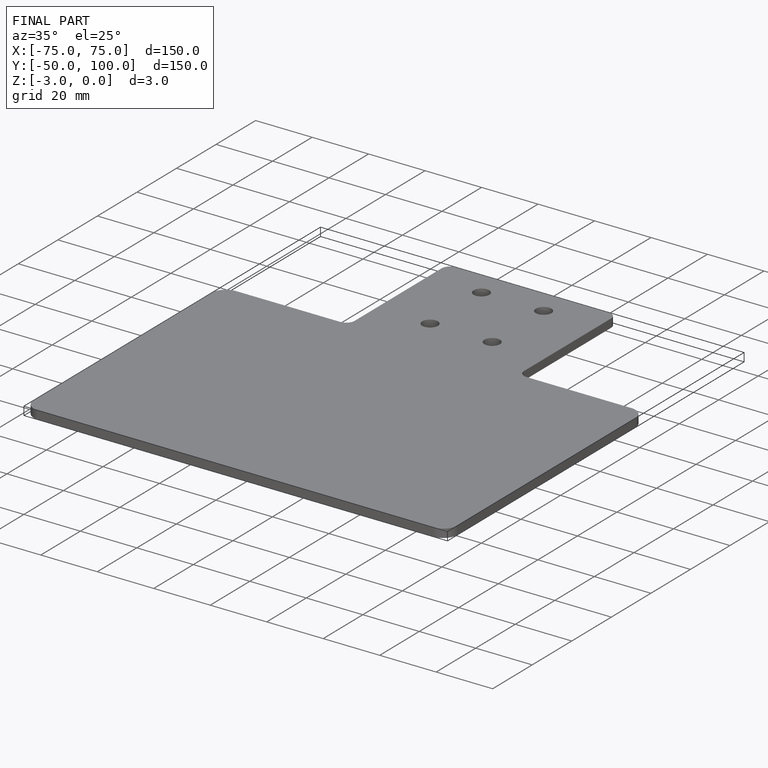
[diagram: finished part — iso view with bounding-box wireframe]
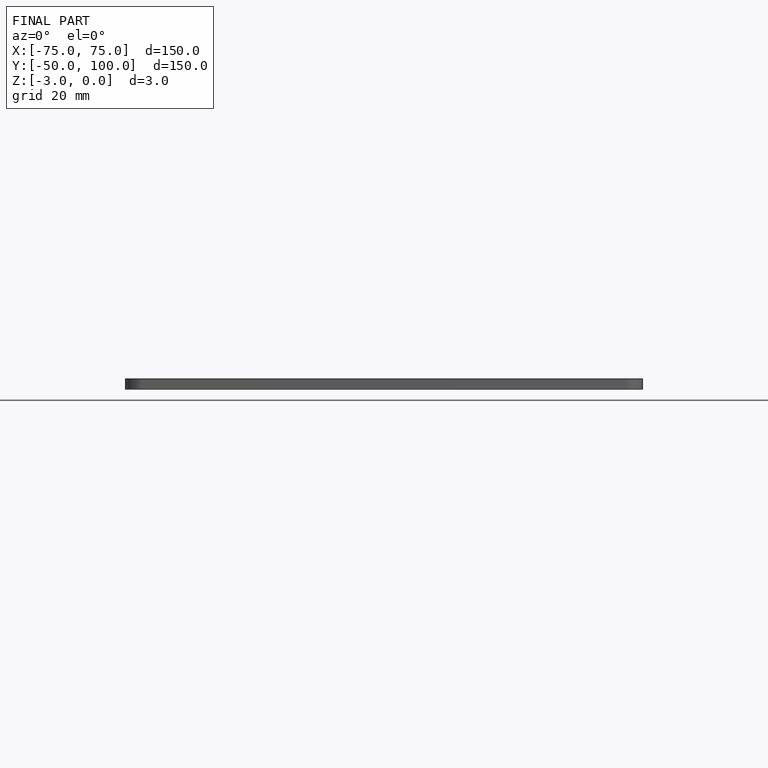
[diagram: finished part — front view with bounding-box wireframe]
